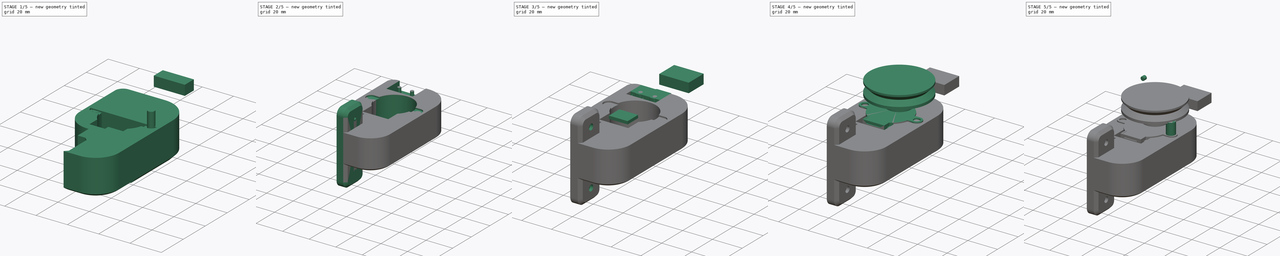
[diagram: build sequence overview — one tinted view per stage of 5, left to right]
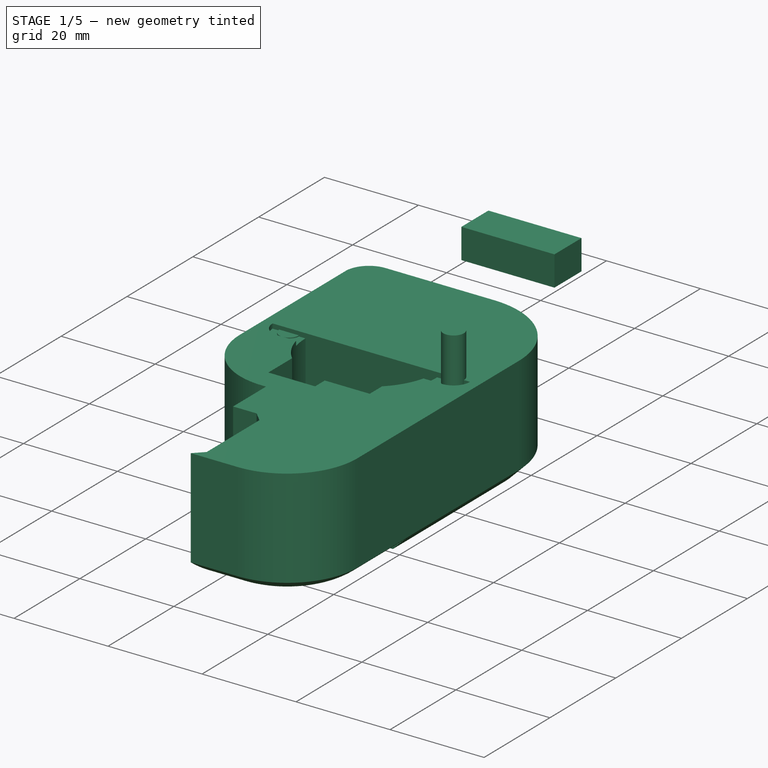
[diagram: stage 1 of 5 — iso view after this stage's code; geometry added in this stage tinted green]
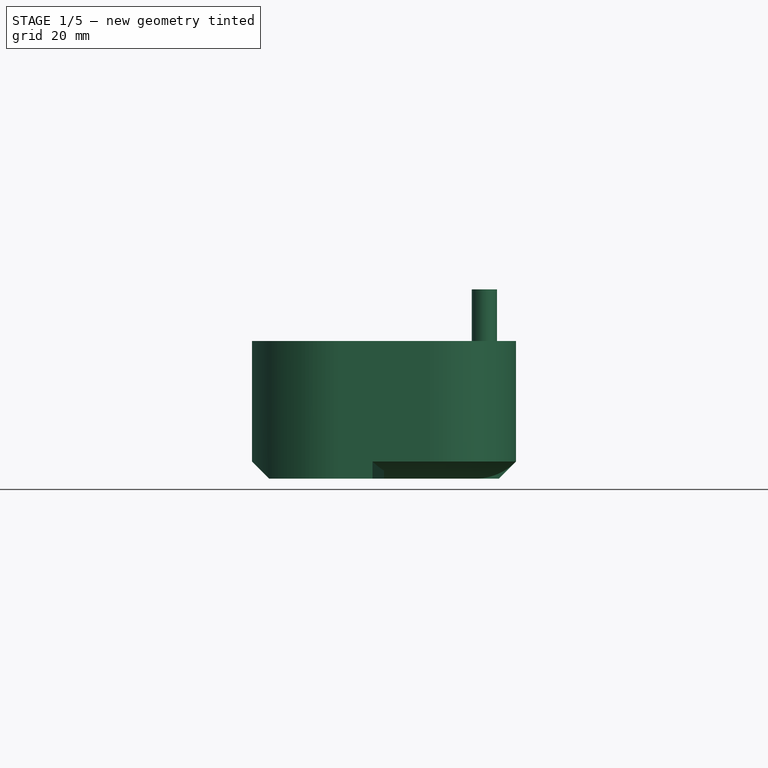
[diagram: stage 1 of 5 — front view after this stage's code; geometry added in this stage tinted green]
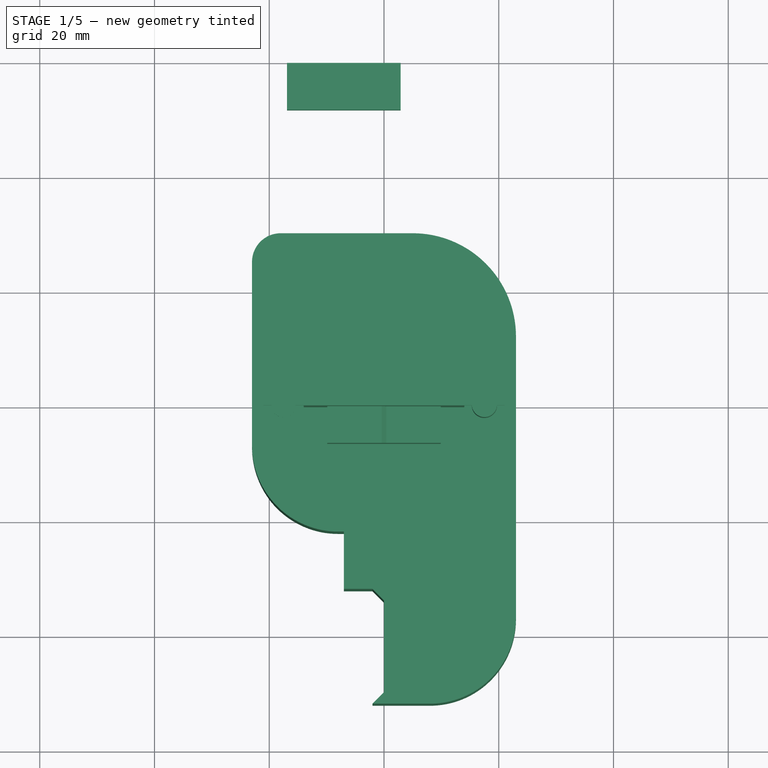
[diagram: stage 1 of 5 — top view after this stage's code; geometry added in this stage tinted green]
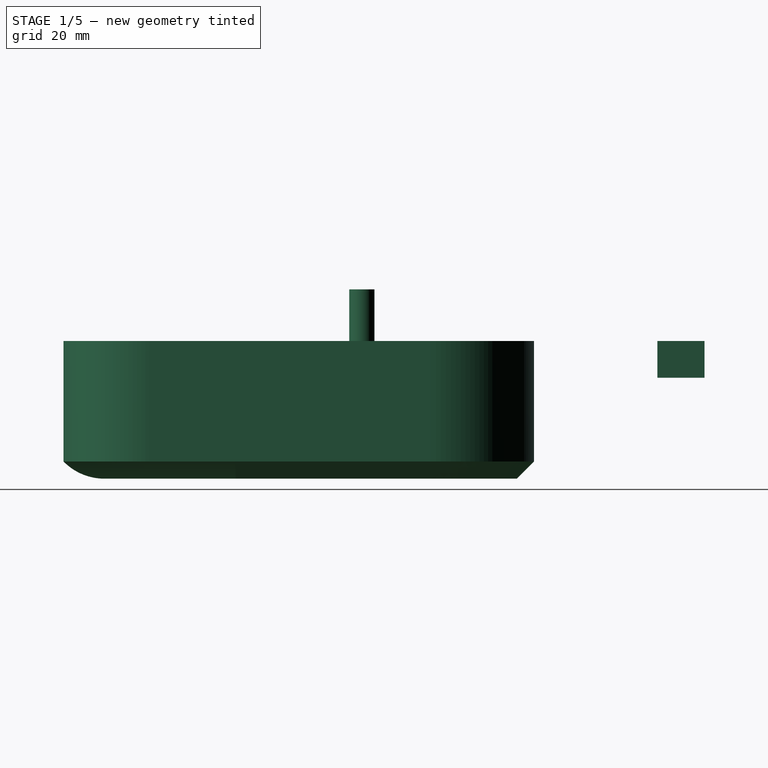
[diagram: stage 1 of 5 — right view after this stage's code; geometry added in this stage tinted green]
FCSTD DOCUMENT  (FreeCAD 0.17R13541 (Git))
Label: naped_rolety
License: All rights reserved
LicenseURL: http://en.wikipedia.org/wiki/All_rights_reserved
objects: Part::Cut×50, Part::Box×40, Part::Cylinder×37, Sketcher::SketchObject×23, Part::Chamfer×16, Part::MultiFuse×14, PartDesign::Pad×13, Part::Fuse×13, Part::Fillet×11, Part::Feature×7, Part::Mirroring×6, PartDesign::Body×6, App::DocumentObjectGroup×4, PartDesign::Pocket×3, PartDesign::Chamfer×3, Part::Compound×2, Part::FeaturePython×2, PartDesign::Revolution×1, Part::Plane×1, Part::Revolution×1
note: 266 computed .brp shape members not serialized (recipe doc carries the construction recipe); baked Part::Feature solids carry a one-line shape summary decoded from their .brp

FEATURE [Part::Feature] Compound001  label="28BYJ-48 final"
  shape: bbox 42 x 31 x 29 mm, 57 faces, 3 solids (baked)
FEATURE [Part::Box] Box007  label="Kostka"
  AttacherType = Attacher::AttachEngine3D
  Height = 24
  Length = 46
  Placement = pos=(-23,-22,-5.8) rot=(0,0,1;0rad)
  Width = 40
FEATURE [Part::Feature] Compound002  label="28BYJ-48 final001"
  Placement = pos=(0,0,-0.8) rot=(0,0,1;0rad)
  shape: bbox 42 x 31 x 29 mm, 57 faces, 3 solids (baked)
FEATURE [Part::Cut] Cut005
  Base = -> Box007
  Tool = -> Compound001
FEATURE [Part::Box] Box008  label="Kostka001"
  AttacherType = Attacher::AttachEngine3D
  Height = 19
  Length = 19.5
  Placement = pos=(-10,-17.2,0) rot=(0,0,1;0rad)
  Width = 9
FEATURE [Part::Cut] Cut006
  Base = -> Cut005
  Tool = -> Box008
FEATURE [Part::Fillet] Fillet
  Base = -> Cut006
  Edges = 1 edges r=15: [Edge23]
FEATURE [Part::Fillet] Fillet001
  Base = -> Fillet
  Edges = 1 edges r=15: [Edge20]
FEATURE [Part::Chamfer] Chamfer
  Base = -> Fillet001
  Edges = 5 edges r=3: [Edge19,Edge22,Edge24,Edge27,Edge29]
FEATURE [Part::Box] Box009  label="Kostka002"
  AttacherType = Attacher::AttachEngine3D
  Height = 24
  Length = 30
  Placement = pos=(-13,-52,-5.8) rot=(0,0,1;0rad)
  Width = 30
FEATURE [Part::Box] Box010  label="Kostka003"
  AttacherType = Attacher::AttachEngine3D
  Height = 54
  Length = 7
  Placement = pos=(-7,-52,-20.8) rot=(0,0,1;0rad)
  Width = 20
FEATURE [Part::Fillet] Fillet002
  Base = -> Box009
  Edges = 1 edges r=15: [Edge5]
  Placement = pos=(6,0,0) rot=(0,0,1;0rad)
FEATURE [Part::Chamfer] Chamfer001
  Base = -> Fillet002
  Edges = 3 edges r=3: [Edge4,Edge9,Edge13]
FEATURE [Part::Fillet] Fillet003
  Base = -> Chamfer
  Edges = 1 edges r=15: [Edge32]
FEATURE [Part::Fillet] Fillet004
  Base = -> Box010
  Edges = 4 edges r=5: [Edge9,Edge10,Edge11,Edge12]
FEATURE [Part::Chamfer] Chamfer002
  Base = -> Fillet004
  Edges = 1 edges r=2: [Edge17]
FEATURE [Part::Cylinder] Cylinder004  label="Cylinder"
  Angle = 360
  AttacherType = Attacher::AttachEngine3D
  Height = 10
  Placement = pos=(-8,-42,-12.3) rot=(0,1,0;1.5708rad)
  Radius = 2
FEATURE [Part::Cylinder] Cylinder005  label="Cylinder001"
  Angle = 360
  AttacherType = Attacher::AttachEngine3D
  Height = 10
  Placement = pos=(-8,-42,24.7) rot=(0,1,0;1.5708rad)
  Radius = 2
FEATURE [Part::Cut] Cut007
  Base = -> Chamfer002
  Tool = -> Cylinder004
FEATURE [Part::Cut] Cut008  label="wspornik_montaz"
  Base = -> Cut007
  Tool = -> Cylinder005
FEATURE [Part::Feature] Compound003  label="28BYJ-48 final002"
  shape: bbox 42 x 31 x 29 mm, 57 faces, 3 solids (baked)
FEATURE [Part::Cut] Cut009
  Base = -> Fillet003
  Tool = -> Compound002
FEATURE [Part::Cut] Cut010
  Base = -> Cut009
  Tool = -> Box008
FEATURE [Part::Cylinder] Cylinder006  label="Cylinder002"
  Angle = 360
  AttacherType = Attacher::AttachEngine3D
  Height = 10
  Placement = pos=(17.5,0,17.4) rot=(0,0,1;0rad)
  Radius = 2.1
FEATURE [Part::Cylinder] Cylinder008  label="Cylinder004"
  Angle = 360
  AttacherType = Attacher::AttachEngine3D
  Height = 10
  Placement = pos=(-17.5,0,17.4) rot=(0,0,1;0rad)
  Radius = 2.1
FEATURE [Part::Cut] Cut011
  Base = -> Cut010
  Tool = -> Cylinder006
FEATURE [Part::Cut] Cut012
  Base = -> Cut011
  Tool = -> Cylinder008
FEATURE [Part::Feature] Compound005  label="28BYJ-48 final003"
  Placement = pos=(0,0,-1) rot=(0,0,1;0rad)
  shape: bbox 42 x 31 x 29 mm, 57 faces, 3 solids (baked)
FEATURE [Part::Feature] Compound006  label="28BYJ-48 final004"
  Placement = pos=(0,0,-0.8) rot=(0,0,1;0rad)
  shape: bbox 42 x 31 x 29 mm, 57 faces, 3 solids (baked)
FEATURE [Part::Cut] Cut023
  Base = -> Cut012
  Tool = -> Compound005
FEATURE [Part::Box] Box019  label="Kostka005"
  AttacherType = Attacher::AttachEngine3D
  Height = 4
  Length = 0.5
  Placement = pos=(8.1,-4.7,-4) rot=(0,0,1;0rad)
  Width = 3
FEATURE [Part::Box] Box020  label="Kostka006"
  AttacherType = Attacher::AttachEngine3D
  Height = 4
  Length = 0.5
  Placement = pos=(-8,-4.7,-4) rot=(0,0,1;0rad)
  Width = 3
FEATURE [Part::Box] Box021  label="Kostka007"
  AttacherType = Attacher::AttachEngine3D
  Height = 4
  Length = 0.5
  Placement = pos=(0.8,-4.7,-4) rot=(0,0,1;0rad)
  Width = 3
FEATURE [Sketcher::SketchObject] Sketch022
  MapMode = 5
  Placement = pos=(0,0,0) rot=(1,0,0;1.5708rad)
  Support = -> [XZ_Plane]
FEATURE [Sketcher::SketchObject] Sketch023
  MapMode = 5
  Placement = pos=(0,0,0) rot=(1,0,0;1.5708rad)
  Support = -> [XZ_Plane]
  sketch-geometry (6):
    g0: LineSegment StartX=-9.9 StartY=0 StartZ=0 EndX=9.9 EndY=0 EndZ=0
    g1: LineSegment StartX=9.9 StartY=0 StartZ=0 EndX=9.9 EndY=9.5 EndZ=0
    g2: LineSegment StartX=9.9 StartY=9.5 StartZ=0 EndX=0.4 EndY=9.5 EndZ=0
    g3: LineSegment StartX=0.4 StartY=9.5 StartZ=0 EndX=-0.4 EndY=10.2 EndZ=0
    g4: LineSegment StartX=-0.4 StartY=10.2 StartZ=0 EndX=-9.9 EndY=10.2 EndZ=0
    g5: LineSegment StartX=-9.9 StartY=10.2 StartZ=0 EndX=-9.9 EndY=0 EndZ=0
  constraints (18):
    c: Horizontal(g0)
    c: Coincident(g1,g0)
    c: Vertical(g1)
    c: Coincident(g2,g1)
    c: Horizontal(g2)
    c: Coincident(g3,g2)
    c: Coincident(g4,g3)
    c: Coincident(g5,g4)
    c: Coincident(g5,g0)
    c: Vertical(g5)
    c: Equal(g2,g4)
    c: DistanceY(g5,g5) = 10.2
    c: DistanceY(g1,g1) = 9.5
    c: DistanceY(g0,g3) = 10.2
    c: DistanceX(g0,g0) = 19.8
    c: DistanceX(g4,g4) = 9.5
    c: DistanceY(g-1,g0) = 0
    c: Symmetric(g0,g0,g-2)
FEATURE [PartDesign::Pad] Pad014
  Length = 6.4
  Length2 = 100
  Placement = pos=(0,0,0) rot=(1,0,0;1.5708rad)
  Profile = -> Sketch023
  Type = 0
FEATURE [Part::Box] Box022  label="Kostka008"
  AttacherType = Attacher::AttachEngine3D
  Height = 0.4
  Length = 3.5
  Placement = pos=(-6.55,-6.4,-0.4) rot=(0,0,1;0rad)
  Width = 6.4
FEATURE [Part::MultiFuse] Fusion015
  Shapes = -> [Box020,Box021,Box019]
FEATURE [Part::Box] Box023  label="Kostka009"
  AttacherType = Attacher::AttachEngine3D
  Height = 24
  Length = 46
  Placement = pos=(-23,0,-5.8) rot=(0,0,1;0rad)
  Width = 30
FEATURE [Part::Fillet] Fillet005
  Base = -> Box023
  Edges = 1 edges r=18: [Edge7]
FEATURE [Part::Fillet] Fillet006
  Base = -> Fillet005
  Edges = 1 edges r=5: [Edge15]
FEATURE [Part::Chamfer] Chamfer012
  Base = -> Fillet006
  Edges = 2 edges r=3: [Edge15,Edge17]
FEATURE [Part::Box] Box030  label="Kostka016"
  AttacherType = Attacher::AttachEngine3D
  Height = 6.4
  Length = 19.8
  Placement = pos=(-16.9,51.5,11.8) rot=(0,0,1;0rad)
  Width = 8.2
FEATURE [Part::MultiFuse] Fusion022
  Shapes = -> [Chamfer012,Cut023]
FEATURE [Part::Fillet] Fillet008
  Base = -> Chamfer001
  Edges = 1 edges r=10: [Edge9]
FEATURE [Part::Cylinder] Cylinder022
  Angle = 360
  AttacherType = Attacher::AttachEngine3D
  Height = 10
  Placement = pos=(17.5,0,17.2) rot=(0,0,1;0rad)
  Radius = 2.2
FEATURE [Part::Box] Box037  label="Kostka023"
  AttacherType = Attacher::AttachEngine3D
  Height = 5
  Length = 19.5
  Placement = pos=(-10,-20,13.2) rot=(0,0,1;0rad)
  Width = 3
FEATURE [Part::Fillet] Fillet009
  Base = -> Box037
  Edges = 1 edges r=1: [Edge9]
FEATURE [Part::Cut] Cut040
  Base = -> Fillet008
  Tool = -> Cut008
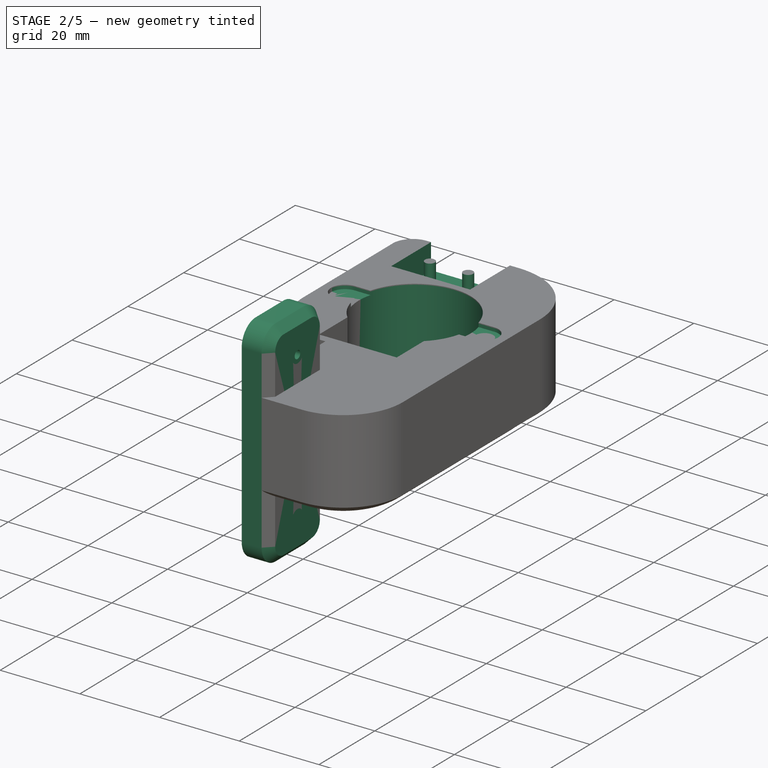
[diagram: stage 2 of 5 — iso view after this stage's code; geometry added in this stage tinted green]
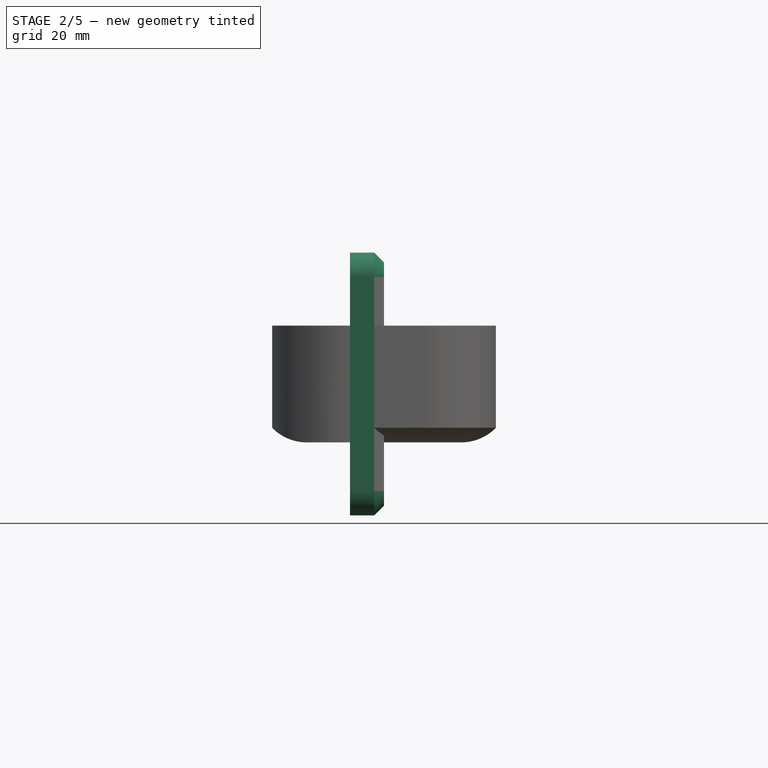
[diagram: stage 2 of 5 — front view after this stage's code; geometry added in this stage tinted green]
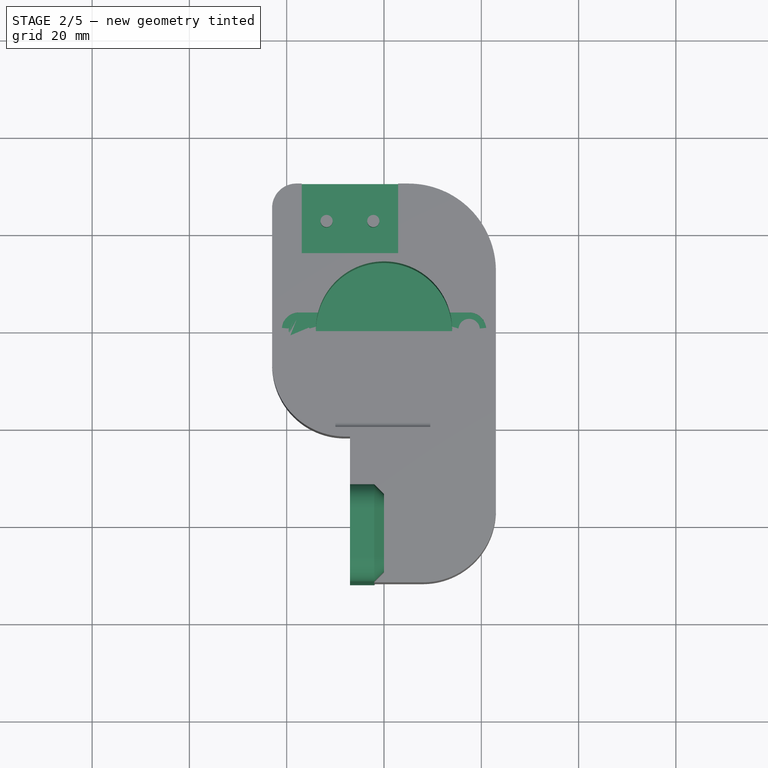
[diagram: stage 2 of 5 — top view after this stage's code; geometry added in this stage tinted green]
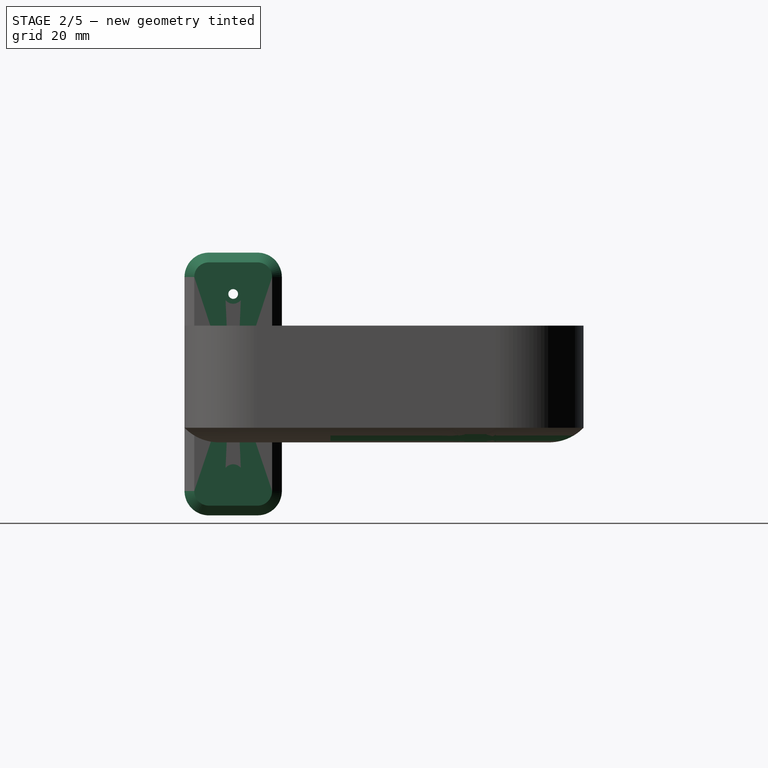
[diagram: stage 2 of 5 — right view after this stage's code; geometry added in this stage tinted green]
FEATURE [Part::Cylinder] Cylinder019
  Angle = 360
  AttacherType = Attacher::AttachEngine3D
  Height = 10
  Placement = pos=(-4.8,2,2.5) rot=(1,0,0;1.5708rad)
  Radius = 1.25
FEATURE [Part::Box] Box018  label="Kostka004"
  AttacherType = Attacher::AttachEngine3D
  Height = 0.4
  Length = 3.5
  Placement = pos=(3.05,-6.4,-0.4) rot=(0,0,1;0rad)
  Width = 6.4
FEATURE [Sketcher::SketchObject] Sketch021
  MapMode = 5
  Placement = pos=(0,0,0) rot=(1,0,0;1.5708rad)
  Support = -> [XZ_Plane]
FEATURE [Part::Chamfer] Chamfer011
  Base = -> Box018
  Edges = 2 edges r=0.39: [Edge4,Edge8]
FEATURE [Part::Chamfer] Chamfer010
  Base = -> Box022
  Edges = 1 edges r=0.39: [Edge4]
FEATURE [Part::Chamfer] Chamfer009
  Base = -> Chamfer010
  Edges = 1 edges r=0.39: [Edge15]
FEATURE [Part::Mirroring] Part__Mirroring  label="Cylinder001 (Mirror #1)"
  Base = (0,0,0)
  Normal = (1,0,0)
  Source = -> Cylinder019
FEATURE [Part::MultiFuse] Fusion014
  Shapes = -> [Chamfer011,Chamfer009]
FEATURE [PartDesign::Body] Body  label="Body003"
  Group = -> [Sketch023,Pad014,Sketch021,Sketch022]
  Origin = -> Origin
  Tip = -> Pad014
FEATURE [Part::Cut] Cut024
  Base = -> Body
  Tool = -> Cylinder019
FEATURE [Part::Cut] Cut025
  Base = -> Cut024
  Tool = -> Part__Mirroring
FEATURE [Sketcher::SketchObject] Sketch024
  MapMode = 5
  Placement = pos=(0,0,0) rot=(1,0,0;1.5708rad)
  Support = -> [XZ_Plane001]
  sketch-geometry (6):
    g0: LineSegment StartX=-7.1993 StartY=11.402 StartZ=0 EndX=9.8007 EndY=11.402 EndZ=0
    g1: LineSegment StartX=-7.1993 StartY=11.402 StartZ=0 EndX=-7.1993 EndY=10.202 EndZ=0
    g2: LineSegment StartX=-6.9993 StartY=10.202 StartZ=0 EndX=-6.9993 EndY=11.202 EndZ=0
    g3: LineSegment StartX=-6.9993 StartY=11.202 StartZ=0 EndX=9.8007 EndY=11.202 EndZ=0
    g4: LineSegment StartX=9.8007 StartY=11.402 StartZ=0 EndX=9.8007 EndY=11.202 EndZ=0
    g5: LineSegment StartX=-7.1993 StartY=10.202 StartZ=0 EndX=-6.9993 EndY=10.202 EndZ=0
  constraints (16):
    c: Horizontal(g0)
    c: DistanceX(g0,g0) = 17
    c: Coincident(g1,g0)
    c: Vertical(g1)
    c: Vertical(g2)
    c: Coincident(g3,g2)
    c: Horizontal(g3)
    c: Coincident(g4,g0)
    c: Coincident(g4,g3)
    c: DistanceX(g0,g2) = 0.2
    c: DistanceX(g3,g3) = 16.8
    c: DistanceY(g4,g4) = 0.2
    c: DistanceY(g1,g1) = 1.2
    c: DistanceY(g2,g2) = 1
    c: Coincident(g5,g1)
    c: Coincident(g5,g2)
FEATURE [PartDesign::Pad] Pad013
  Length = 3.8
  Length2 = 100
  Placement = pos=(0,0,0) rot=(1,0,0;1.5708rad)
  Profile = -> Sketch024
  Type = 0
FEATURE [PartDesign::Body] Body001  label="Body002"
  Group = -> [Sketch024,Pad013]
  Origin = -> Origin001
  Placement = pos=(0,-1.3,0) rot=(0,0,1;0rad)
  Tip = -> Pad013
FEATURE [Part::MultiFuse] Fusion013
  Placement = pos=(0,36,66) rot=(-1,0,0;1.5708rad)
  Shapes = -> [Body001,Cut025,Fusion015,Fusion014]
FEATURE [Part::Mirroring] Part__Mirroring001  label="Fusion013 (Mirror #2)"
  Base = (0,0,0)
  Normal = (1,0,0)
  Placement = pos=(-7,15.5,-54.2) rot=(0,0,1;0rad)
  Source = -> Fusion013
FEATURE [Part::Box] Box029  label="Kostka015"
  AttacherType = Attacher::AttachEngine3D
  Height = 6.4
  Length = 19.8
  Placement = pos=(-16.9,47.4,11.8) rot=(0,0,1;0rad)
  Width = 14.3
FEATURE [Part::Cut] Cut030
  Base = -> Box030
  Tool = -> Part__Mirroring001
FEATURE [Part::Cut] Cut031
  Base = -> Box029
  Placement = pos=(0,-31.7,0) rot=(0,0,1;0rad)
  Tool = -> Cut030
FEATURE [Part::Cut] Cut032
  Base = -> Fusion022
  Tool = -> Cut031
FEATURE [Part::Fillet] Fillet007
  Base = -> Cut032
  Edges = 1 edges r=10: [Edge10]
FEATURE [Part::Feature] Compound007  label="28BYJ-48 final005"
  Placement = pos=(0,0,-1) rot=(0,0,1;0rad)
  shape: bbox 42 x 31 x 29 mm, 57 faces, 3 solids (baked)
FEATURE [Part::Cut] Cut033
  Base = -> Fillet007
  Tool = -> Compound006
FEATURE [Part::Feature] Compound008  label="28BYJ-48 final006"
  Placement = pos=(0,0,-1) rot=(0,0,1;0rad)
  shape: bbox 42 x 31 x 29 mm, 57 faces, 3 solids (baked)
FEATURE [Part::Cut] Cut034
  Base = -> Cut033
  Tool = -> Compound007
FEATURE [Part::Cylinder] Cylinder023
  Angle = 360
  AttacherType = Attacher::AttachEngine3D
  Height = 10
  Placement = pos=(-17.5,0,17.2) rot=(0,0,1;0rad)
  Radius = 2.2
FEATURE [Part::Cut] Cut035
  Base = -> Cut034
  Tool = -> Cylinder022
FEATURE [Part::Cut] Cut036
  Base = -> Cut035
  Tool = -> Cylinder023
FEATURE [Part::Cut] Cut037
  Base = -> Cut036
  Tool = -> Fillet009
FEATURE [Part::Cylinder] Cylinder024
  Angle = 360
  AttacherType = Attacher::AttachEngine3D
  Height = 10
  Placement = pos=(-8,-42,24.7) rot=(0,1,0;1.5708rad)
  Radius = 2
FEATURE [Part::Box] Box038  label="Kostka024"
  AttacherType = Attacher::AttachEngine3D
  Height = 54
  Length = 7
  Placement = pos=(-7,-52,-20.8) rot=(0,0,1;0rad)
  Width = 20
FEATURE [Part::Fillet] Fillet010
  Base = -> Box038
  Edges = 4 edges r=5: [Edge9,Edge10,Edge11,Edge12]
FEATURE [Part::Chamfer] Chamfer019
  Base = -> Fillet010
  Edges = 1 edges r=2: [Edge17]
FEATURE [Part::Cylinder] Cylinder025
  Angle = 360
  AttacherType = Attacher::AttachEngine3D
  Height = 10
  Placement = pos=(-8,-42,-12.3) rot=(0,1,0;1.5708rad)
  Radius = 2
FEATURE [Part::Cut] Cut038
  Base = -> Chamfer019
  Tool = -> Cylinder025
FEATURE [Part::Cut] Cut039  label="wspornik_montaz001"
  Base = -> Cut038
  Tool = -> Cylinder024
FEATURE [Part::Cylinder] Cylinder026
  Angle = 360
  AttacherType = Attacher::AttachEngine3D
  Height = 10
  Placement = pos=(-7,-42,6) rot=(0,1,0;1.5708rad)
  Radius = 1
FEATURE [Part::Cylinder] Cylinder027
  Angle = 360
  AttacherType = Attacher::AttachEngine3D
  Height = 2
  Placement = pos=(-7,-42,6) rot=(0,1,0;1.5708rad)
  Radius = 2
FEATURE [Part::Cut] Cut041
  Base = -> Cut039
  Tool = -> Cylinder026
FEATURE [Part::Cut] Cut042
  Base = -> Cut041
  Tool = -> Cylinder027
FEATURE [Part::Cylinder] Cylinder028
  Angle = 360
  AttacherType = Attacher::AttachEngine3D
  Height = 7
  Placement = pos=(-7,-42,-12.3) rot=(0,1,0;1.5708rad)
  Radius = 2
FEATURE [Part::Cylinder] Cylinder029
  Angle = 360
  AttacherType = Attacher::AttachEngine3D
  Height = 7
  Placement = pos=(-7,-42,24.7) rot=(0,1,0;1.5708rad)
  Radius = 2
FEATURE [Part::Cylinder] Cylinder030
  Angle = 360
  AttacherType = Attacher::AttachEngine3D
  Height = 7
  Placement = pos=(-7,-42,-12.3) rot=(0,1,0;1.5708rad)
  Radius = 1
FEATURE [Part::Cylinder] Cylinder031
  Angle = 360
  AttacherType = Attacher::AttachEngine3D
  Height = 7
  Placement = pos=(-7,-42,24.7) rot=(0,1,0;1.5708rad)
  Radius = 1
FEATURE [Part::MultiFuse] Fusion023
  Shapes = -> [Cut042,Cylinder028]
FEATURE [Part::MultiFuse] Fusion024
  Shapes = -> [Fusion023,Cylinder029]
FEATURE [Part::Cut] Cut043
  Base = -> Fusion024
  Tool = -> Cylinder031
FEATURE [Part::MultiFuse] Fusion025  label="korpus"
  Shapes = -> [Cut037,Cut040]
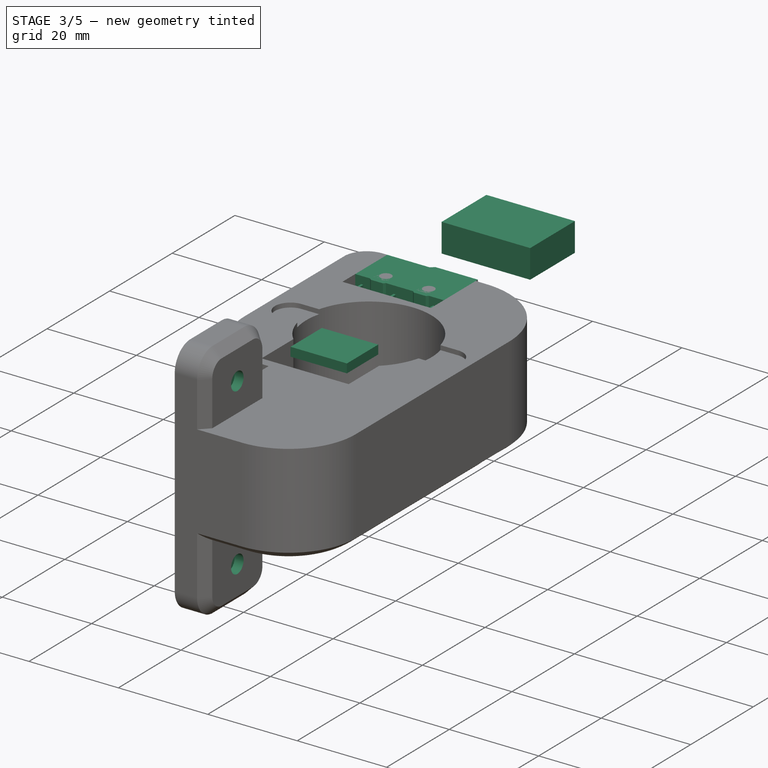
[diagram: stage 3 of 5 — iso view after this stage's code; geometry added in this stage tinted green]
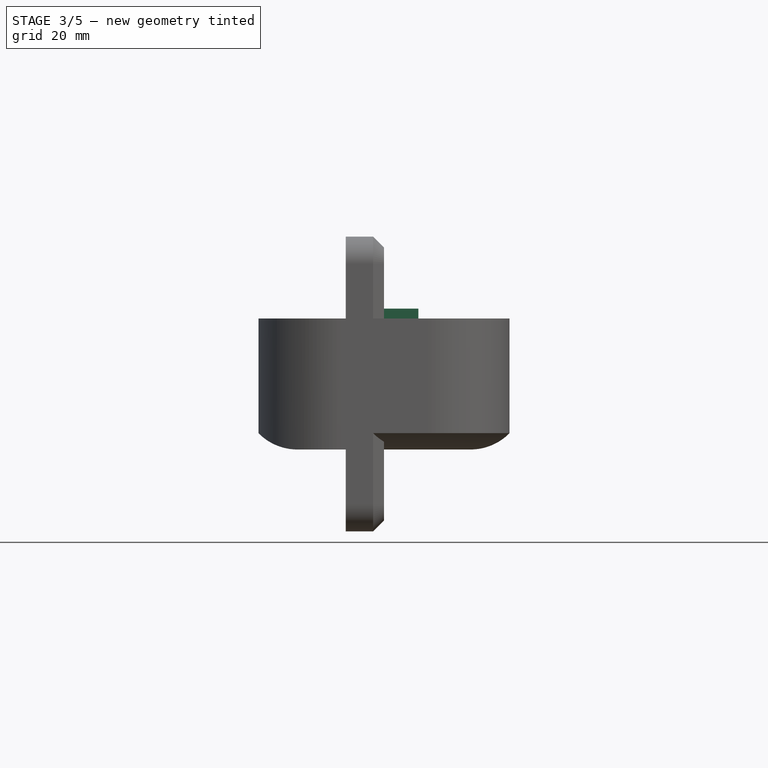
[diagram: stage 3 of 5 — front view after this stage's code; geometry added in this stage tinted green]
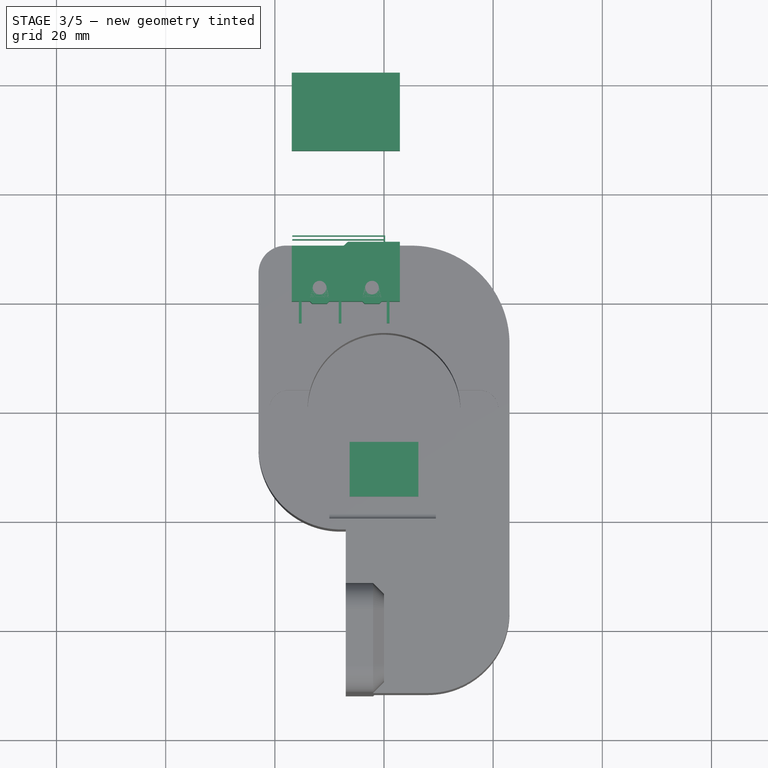
[diagram: stage 3 of 5 — top view after this stage's code; geometry added in this stage tinted green]
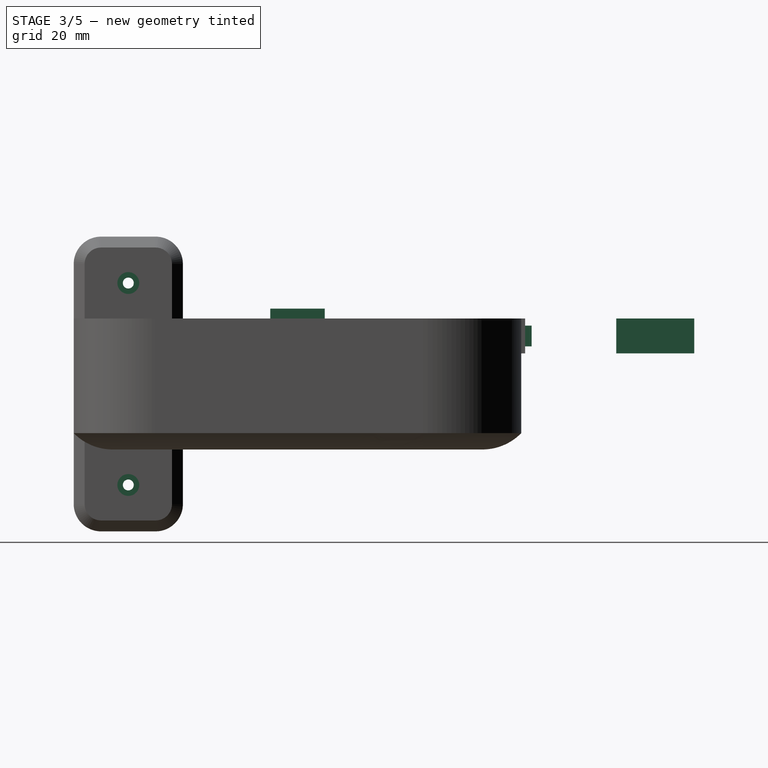
[diagram: stage 3 of 5 — right view after this stage's code; geometry added in this stage tinted green]
FEATURE [App::DocumentObjectGroup] Grupo002  label="Axis003"
  Group = -> [Cut018]
FEATURE [Part::Box] Box017  label="Cubo013"
  AttacherType = Attacher::AttachEngine3D
  Height = 2
  Length = 12.6
  Placement = pos=(-6.3,-16,18) rot=(0,0,1;0rad)
  Width = 10
FEATURE [Part::Box] Box024  label="Kostka010"
  AttacherType = Attacher::AttachEngine3D
  Height = 0.4
  Length = 3.5
  Placement = pos=(3.05,-6.4,-0.4) rot=(0,0,1;0rad)
  Width = 6.4
FEATURE [Part::Cylinder] Cylinder020
  Angle = 360
  AttacherType = Attacher::AttachEngine3D
  Height = 10
  Placement = pos=(-4.8,2,2.5) rot=(1,0,0;1.5708rad)
  Radius = 1.25
FEATURE [Part::Box] Box025  label="Kostka011"
  AttacherType = Attacher::AttachEngine3D
  Height = 4
  Length = 0.5
  Placement = pos=(8.1,-4.7,-4) rot=(0,0,1;0rad)
  Width = 3
FEATURE [Part::Box] Box026  label="Kostka012"
  AttacherType = Attacher::AttachEngine3D
  Height = 4
  Length = 0.5
  Placement = pos=(-8,-4.7,-4) rot=(0,0,1;0rad)
  Width = 3
FEATURE [Part::Box] Box027  label="Kostka013"
  AttacherType = Attacher::AttachEngine3D
  Height = 4
  Length = 0.5
  Placement = pos=(0.8,-4.7,-4) rot=(0,0,1;0rad)
  Width = 3
FEATURE [Part::Box] Box028  label="Kostka014"
  AttacherType = Attacher::AttachEngine3D
  Height = 0.4
  Length = 3.5
  Placement = pos=(-6.55,-6.4,-0.4) rot=(0,0,1;0rad)
  Width = 6.4
FEATURE [Part::Chamfer] Chamfer014
  Base = -> Box028
  Edges = 1 edges r=0.39: [Edge4]
FEATURE [Part::Chamfer] Chamfer013
  Base = -> Chamfer014
  Edges = 1 edges r=0.39: [Edge15]
FEATURE [Part::Chamfer] Chamfer015
  Base = -> Box024
  Edges = 2 edges r=0.39: [Edge4,Edge8]
FEATURE [Part::MultiFuse] Fusion016
  Shapes = -> [Box026,Box027,Box025]
FEATURE [Part::Mirroring] Part__Mirroring003  label="Cylinder001 (Mirror #1)001"
  Base = (0,0,0)
  Normal = (1,0,0)
  Source = -> Cylinder020
FEATURE [Part::MultiFuse] Fusion018
  Shapes = -> [Chamfer015,Chamfer013]
FEATURE [Sketcher::SketchObject] Sketch025
  MapMode = 5
  Placement = pos=(0,0,0) rot=(1,0,0;1.5708rad)
  Support = -> [XZ_Plane003]
  sketch-geometry (6):
    g0: LineSegment StartX=-7.1993 StartY=11.402 StartZ=0 EndX=9.8007 EndY=11.402 EndZ=0
    g1: LineSegment StartX=-7.1993 StartY=11.402 StartZ=0 EndX=-7.1993 EndY=10.202 EndZ=0
    g2: LineSegment StartX=-6.9993 StartY=10.202 StartZ=0 EndX=-6.9993 EndY=11.202 EndZ=0
    g3: LineSegment StartX=-6.9993 StartY=11.202 StartZ=0 EndX=9.8007 EndY=11.202 EndZ=0
    g4: LineSegment StartX=9.8007 StartY=11.402 StartZ=0 EndX=9.8007 EndY=11.202 EndZ=0
    g5: LineSegment StartX=-7.1993 StartY=10.202 StartZ=0 EndX=-6.9993 EndY=10.202 EndZ=0
  constraints (16):
    c: Horizontal(g0)
    c: DistanceX(g0,g0) = 17
    c: Coincident(g1,g0)
    c: Vertical(g1)
    c: Vertical(g2)
    c: Coincident(g3,g2)
    c: Horizontal(g3)
    c: Coincident(g4,g0)
    c: Coincident(g4,g3)
    c: DistanceX(g0,g2) = 0.2
    c: DistanceX(g3,g3) = 16.8
    c: DistanceY(g4,g4) = 0.2
    c: DistanceY(g1,g1) = 1.2
    c: DistanceY(g2,g2) = 1
    c: Coincident(g5,g1)
    c: Coincident(g5,g2)
FEATURE [PartDesign::Pad] Pad015
  Length = 3.8
  Length2 = 100
  Placement = pos=(0,0,0) rot=(1,0,0;1.5708rad)
  Profile = -> Sketch025
  Type = 0
FEATURE [PartDesign::Body] Body003  label="Body005"
  Group = -> [Sketch025,Pad015]
  Origin = -> Origin002
  Placement = pos=(0,-1.3,0) rot=(0,0,1;0rad)
  Tip = -> Pad015
FEATURE [Sketcher::SketchObject] Sketch026
  MapMode = 5
  Placement = pos=(0,0,0) rot=(1,0,0;1.5708rad)
  Support = -> [XZ_Plane002]
FEATURE [Sketcher::SketchObject] Sketch027
  MapMode = 5
  Placement = pos=(0,0,0) rot=(1,0,0;1.5708rad)
  Support = -> [XZ_Plane002]
FEATURE [Sketcher::SketchObject] Sketch028
  MapMode = 5
  Placement = pos=(0,0,0) rot=(1,0,0;1.5708rad)
  Support = -> [XZ_Plane002]
  sketch-geometry (6):
    g0: LineSegment StartX=-9.9 StartY=0 StartZ=0 EndX=9.9 EndY=0 EndZ=0
    g1: LineSegment StartX=9.9 StartY=0 StartZ=0 EndX=9.9 EndY=9.5 EndZ=0
    g2: LineSegment StartX=9.9 StartY=9.5 StartZ=0 EndX=0.4 EndY=9.5 EndZ=0
    g3: LineSegment StartX=0.4 StartY=9.5 StartZ=0 EndX=-0.4 EndY=10.2 EndZ=0
    g4: LineSegment StartX=-0.4 StartY=10.2 StartZ=0 EndX=-9.9 EndY=10.2 EndZ=0
    g5: LineSegment StartX=-9.9 StartY=10.2 StartZ=0 EndX=-9.9 EndY=0 EndZ=0
  constraints (18):
    c: Horizontal(g0)
    c: Coincident(g1,g0)
    c: Vertical(g1)
    c: Coincident(g2,g1)
    c: Horizontal(g2)
    c: Coincident(g3,g2)
    c: Coincident(g4,g3)
    c: Coincident(g5,g4)
    c: Coincident(g5,g0)
    c: Vertical(g5)
    c: Equal(g2,g4)
    c: DistanceY(g5,g5) = 10.2
    c: DistanceY(g1,g1) = 9.5
    c: DistanceY(g0,g3) = 10.2
    c: DistanceX(g0,g0) = 19.8
    c: DistanceX(g4,g4) = 9.5
    c: DistanceY(g-1,g0) = 0
    c: Symmetric(g0,g0,g-2)
FEATURE [PartDesign::Pad] Pad016
  Length = 6.4
  Length2 = 100
  Placement = pos=(0,0,0) rot=(1,0,0;1.5708rad)
  Profile = -> Sketch028
  Type = 0
FEATURE [PartDesign::Body] Body002  label="Body004"
  Group = -> [Sketch028,Pad016,Sketch026,Sketch027]
  Origin = -> Origin003
  Tip = -> Pad016
FEATURE [Part::Cut] Cut026
  Base = -> Body002
  Tool = -> Cylinder020
FEATURE [Part::Cut] Cut027
  Base = -> Cut026
  Tool = -> Part__Mirroring003
FEATURE [Part::MultiFuse] Fusion017
  Placement = pos=(0,36,66) rot=(-1,0,0;1.5708rad)
  Shapes = -> [Body003,Cut027,Fusion016,Fusion018]
FEATURE [Part::Mirroring] Part__Mirroring002  label="Fusion013 (Mirror #2)001"
  Base = (0,0,0)
  Normal = (1,0,0)
  Placement = pos=(-7,-15.5,-54.2) rot=(0,0,1;0rad)
  Source = -> Fusion017
FEATURE [Part::Box] Box031  label="Kostka017"
  AttacherType = Attacher::AttachEngine3D
  Height = 0.4
  Length = 3.5
  Placement = pos=(3.05,-6.4,-0.4) rot=(0,0,1;0rad)
  Width = 6.4
FEATURE [Part::Cylinder] Cylinder021
  Angle = 360
  AttacherType = Attacher::AttachEngine3D
  Height = 10
  Placement = pos=(-4.8,2,2.5) rot=(1,0,0;1.5708rad)
  Radius = 1.25
FEATURE [Part::Box] Box032  label="Kostka018"
  AttacherType = Attacher::AttachEngine3D
  Height = 4
  Length = 0.5
  Placement = pos=(8.1,-4.7,-4) rot=(0,0,1;0rad)
  Width = 3
FEATURE [Part::Box] Box033  label="Kostka019"
  AttacherType = Attacher::AttachEngine3D
  Height = 4
  Length = 0.5
  Placement = pos=(-8,-4.7,-4) rot=(0,0,1;0rad)
  Width = 3
FEATURE [Part::Box] Box034  label="Kostka020"
  AttacherType = Attacher::AttachEngine3D
  Height = 4
  Length = 0.5
  Placement = pos=(0.8,-4.7,-4) rot=(0,0,1;0rad)
  Width = 3
FEATURE [Part::Box] Box035  label="Kostka021"
  AttacherType = Attacher::AttachEngine3D
  Height = 0.4
  Length = 3.5
  Placement = pos=(-6.55,-6.4,-0.4) rot=(0,0,1;0rad)
  Width = 6.4
FEATURE [Part::Chamfer] Chamfer017
  Base = -> Box035
  Edges = 1 edges r=0.39: [Edge4]
FEATURE [Part::Chamfer] Chamfer016
  Base = -> Chamfer017
  Edges = 1 edges r=0.39: [Edge15]
FEATURE [Part::Chamfer] Chamfer018
  Base = -> Box031
  Edges = 2 edges r=0.39: [Edge4,Edge8]
FEATURE [Part::MultiFuse] Fusion019
  Shapes = -> [Box033,Box034,Box032]
FEATURE [Part::Mirroring] Part__Mirroring005  label="Cylinder001 (Mirror #1)002"
  Base = (0,0,0)
  Normal = (1,0,0)
  Source = -> Cylinder021
FEATURE [Part::MultiFuse] Fusion021
  Shapes = -> [Chamfer018,Chamfer016]
FEATURE [Sketcher::SketchObject] Sketch029
  MapMode = 5
  Placement = pos=(0,0,0) rot=(1,0,0;1.5708rad)
  Support = -> [XZ_Plane005]
  sketch-geometry (6):
    g0: LineSegment StartX=-7.1993 StartY=11.402 StartZ=0 EndX=9.8007 EndY=11.402 EndZ=0
    g1: LineSegment StartX=-7.1993 StartY=11.402 StartZ=0 EndX=-7.1993 EndY=10.202 EndZ=0
    g2: LineSegment StartX=-6.9993 StartY=10.202 StartZ=0 EndX=-6.9993 EndY=11.202 EndZ=0
    g3: LineSegment StartX=-6.9993 StartY=11.202 StartZ=0 EndX=9.8007 EndY=11.202 EndZ=0
    g4: LineSegment StartX=9.8007 StartY=11.402 StartZ=0 EndX=9.8007 EndY=11.202 EndZ=0
    g5: LineSegment StartX=-7.1993 StartY=10.202 StartZ=0 EndX=-6.9993 EndY=10.202 EndZ=0
  constraints (16):
    c: Horizontal(g0)
    c: DistanceX(g0,g0) = 17
    c: Coincident(g1,g0)
    c: Vertical(g1)
    c: Vertical(g2)
    c: Coincident(g3,g2)
    c: Horizontal(g3)
    c: Coincident(g4,g0)
    c: Coincident(g4,g3)
    c: DistanceX(g0,g2) = 0.2
    c: DistanceX(g3,g3) = 16.8
    c: DistanceY(g4,g4) = 0.2
    c: DistanceY(g1,g1) = 1.2
    c: DistanceY(g2,g2) = 1
    c: Coincident(g5,g1)
    c: Coincident(g5,g2)
FEATURE [PartDesign::Pad] Pad017
  Length = 3.8
  Length2 = 100
  Placement = pos=(0,0,0) rot=(1,0,0;1.5708rad)
  Profile = -> Sketch029
  Type = 0
FEATURE [PartDesign::Body] Body005  label="Body007"
  Group = -> [Sketch029,Pad017]
  Origin = -> Origin004
  Placement = pos=(0,-1.3,0) rot=(0,0,1;0rad)
  Tip = -> Pad017
FEATURE [Sketcher::SketchObject] Sketch030
  MapMode = 5
  Placement = pos=(0,0,0) rot=(1,0,0;1.5708rad)
  Support = -> [XZ_Plane004]
FEATURE [Sketcher::SketchObject] Sketch031
  MapMode = 5
  Placement = pos=(0,0,0) rot=(1,0,0;1.5708rad)
  Support = -> [XZ_Plane004]
FEATURE [Sketcher::SketchObject] Sketch032
  MapMode = 5
  Placement = pos=(0,0,0) rot=(1,0,0;1.5708rad)
  Support = -> [XZ_Plane004]
  sketch-geometry (6):
    g0: LineSegment StartX=-9.9 StartY=0 StartZ=0 EndX=9.9 EndY=0 EndZ=0
    g1: LineSegment StartX=9.9 StartY=0 StartZ=0 EndX=9.9 EndY=9.5 EndZ=0
    g2: LineSegment StartX=9.9 StartY=9.5 StartZ=0 EndX=0.4 EndY=9.5 EndZ=0
    g3: LineSegment StartX=0.4 StartY=9.5 StartZ=0 EndX=-0.4 EndY=10.2 EndZ=0
    g4: LineSegment StartX=-0.4 StartY=10.2 StartZ=0 EndX=-9.9 EndY=10.2 EndZ=0
    g5: LineSegment StartX=-9.9 StartY=10.2 StartZ=0 EndX=-9.9 EndY=0 EndZ=0
  constraints (18):
    c: Horizontal(g0)
    c: Coincident(g1,g0)
    c: Vertical(g1)
    c: Coincident(g2,g1)
    c: Horizontal(g2)
    c: Coincident(g3,g2)
    c: Coincident(g4,g3)
    c: Coincident(g5,g4)
    c: Coincident(g5,g0)
    c: Vertical(g5)
    c: Equal(g2,g4)
    c: DistanceY(g5,g5) = 10.2
    c: DistanceY(g1,g1) = 9.5
    c: DistanceY(g0,g3) = 10.2
    c: DistanceX(g0,g0) = 19.8
    c: DistanceX(g4,g4) = 9.5
    c: DistanceY(g-1,g0) = 0
    c: Symmetric(g0,g0,g-2)
FEATURE [PartDesign::Pad] Pad018
  Length = 6.4
  Length2 = 100
  Placement = pos=(0,0,0) rot=(1,0,0;1.5708rad)
  Profile = -> Sketch032
  Type = 0
FEATURE [PartDesign::Body] Body004  label="Body006"
  Group = -> [Sketch032,Pad018,Sketch030,Sketch031]
  Origin = -> Origin005
  Tip = -> Pad018
FEATURE [Part::Cut] Cut028
  Base = -> Body004
  Tool = -> Cylinder021
FEATURE [Part::Cut] Cut029
  Base = -> Cut028
  Tool = -> Part__Mirroring005
FEATURE [Part::MultiFuse] Fusion020
  Placement = pos=(0,36,66) rot=(-1,0,0;1.5708rad)
  Shapes = -> [Body005,Cut029,Fusion019,Fusion021]
FEATURE [Part::Mirroring] Part__Mirroring004  label="krancowka"
  Base = (0,0,0)
  Normal = (1,0,0)
  Placement = pos=(-7,-16.2,-54.2) rot=(0,0,1;0rad)
  Source = -> Fusion020
FEATURE [Part::Box] Box036  label="Kostka022"
  AttacherType = Attacher::AttachEngine3D
  Height = 6.4
  Length = 19.8
  Placement = pos=(-16.9,47.4,11.8) rot=(0,0,1;0rad)
  Width = 14.3
FEATURE [Part::Cylinder] Cylinder032
  Angle = 360
  AttacherType = Attacher::AttachEngine3D
  Height = 2
  Placement = pos=(-2,-42,-12.3) rot=(0,1,0;1.5708rad)
  Radius = 2
FEATURE [Part::Cylinder] Cylinder033
  Angle = 360
  AttacherType = Attacher::AttachEngine3D
  Height = 2
  Placement = pos=(-2,-42,24.7) rot=(0,1,0;1.5708rad)
  Radius = 2
FEATURE [Part::Cut] Cut044
  Base = -> Cut043
  Tool = -> Cylinder030
FEATURE [Part::Cut] Cut045
  Base = -> Cut044
  Tool = -> Cylinder033
FEATURE [Part::Cut] Cut046  label="wspornik_montazowy_2"
  Base = -> Cut045
  Tool = -> Cylinder032
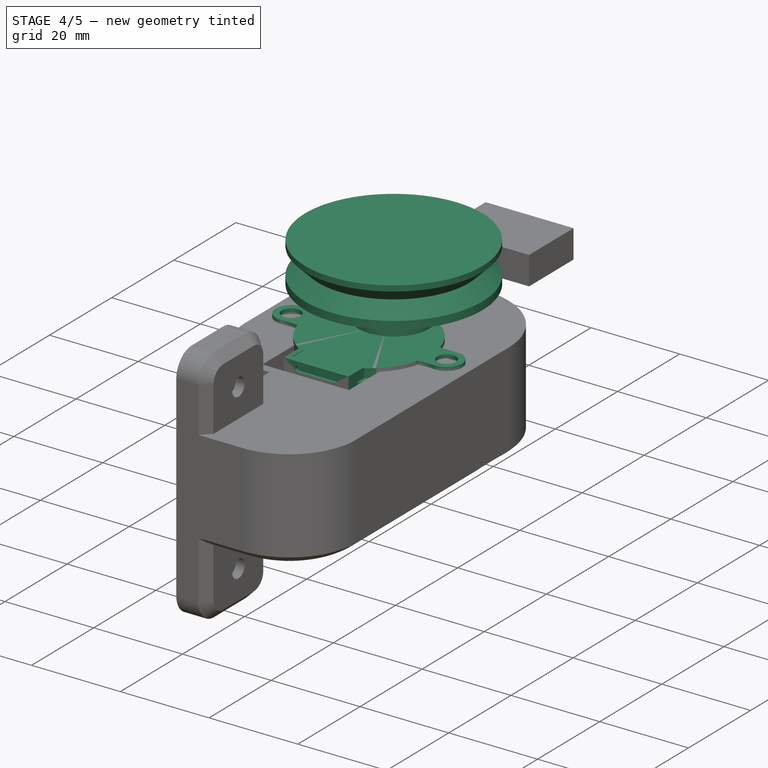
[diagram: stage 4 of 5 — iso view after this stage's code; geometry added in this stage tinted green]
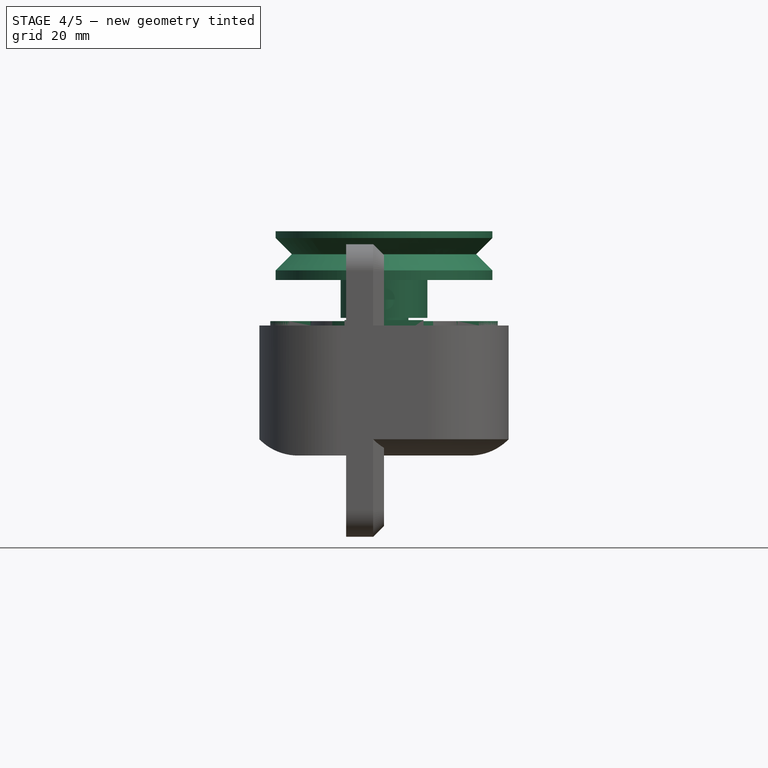
[diagram: stage 4 of 5 — front view after this stage's code; geometry added in this stage tinted green]
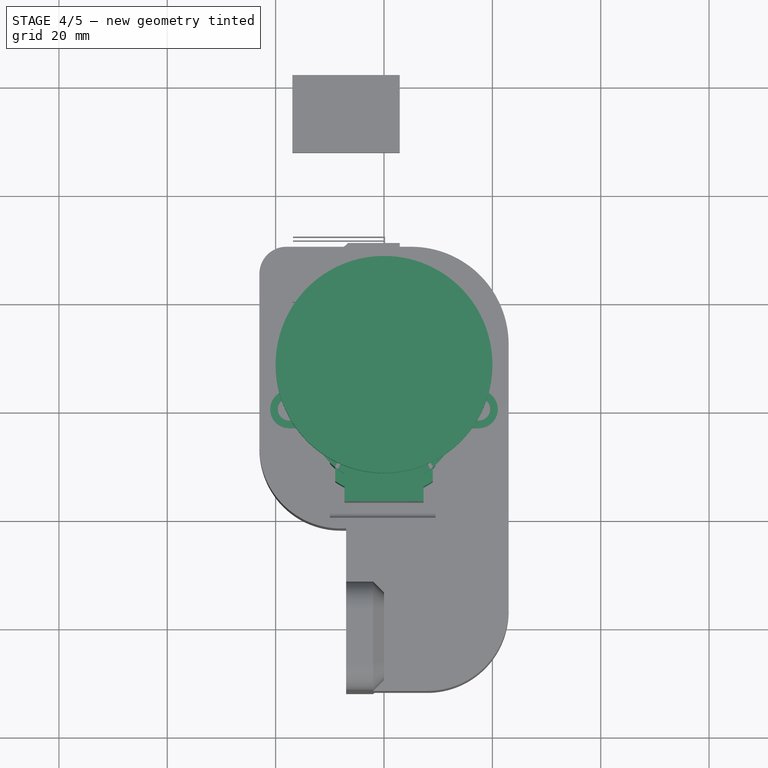
[diagram: stage 4 of 5 — top view after this stage's code; geometry added in this stage tinted green]
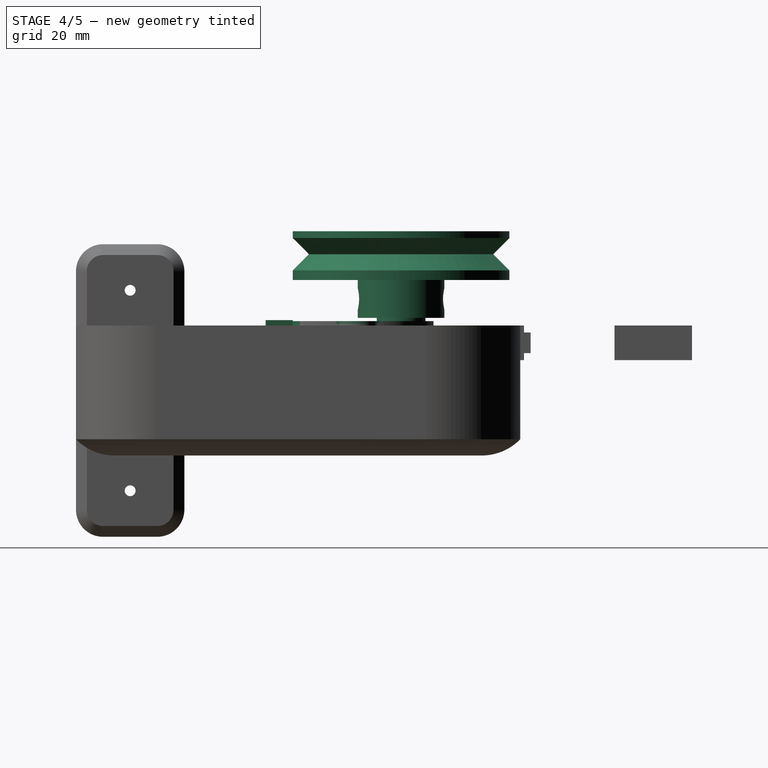
[diagram: stage 4 of 5 — right view after this stage's code; geometry added in this stage tinted green]
FEATURE [Part::Cylinder] Cylinder009  label="Cilindro002"
  Angle = 360
  AttacherType = Attacher::AttachEngine3D
  Height = 7.6
  Placement = pos=(6.1,0,0) rot=(0,0,1;0rad)
  Radius = 0.6
FEATURE [Part::FeaturePython] Array  # Draft array (typed FeaturePython)
  Angle = 360
  ArrayType = 1
  Axis = (0,0,1)
  Base = -> Cylinder009
  Center = (0,0,0)
  IntervalX = (1,0,0)
  IntervalY = (0,1,0)
  IntervalZ = (0,0,1)
  NumberPolar = 20
  NumberX = 2
  NumberY = 2
  NumberZ = 1
FEATURE [Part::Cylinder] Cylinder010  label="Cilindro003"
  Angle = 360
  AttacherType = Attacher::AttachEngine3D
  Height = 7.6
  Radius = 6.1
FEATURE [Part::Cylinder] Cylinder011  label="Cilindro004"
  Angle = 360
  AttacherType = Attacher::AttachEngine3D
  Height = 1
  Radius = 9
FEATURE [Part::Cylinder] Cylinder012  label="Cilindro005"
  Angle = 360
  AttacherType = Attacher::AttachEngine3D
  Height = 6
  Placement = pos=(0,0,8.6) rot=(0,0,1;0rad)
  Radius = 9
FEATURE [Part::Chamfer] Chamfer007
  Base = -> Cylinder011
  Edges = 1 edges r=0.5: [Edge1]
FEATURE [Part::Chamfer] Chamfer008
  Base = -> Cylinder012
  Edges = 1 edges r=0.5: [Edge3]
FEATURE [Part::Cylinder] Cylinder014  label="Cilindro007"
  Angle = 360
  AttacherType = Attacher::AttachEngine3D
  Height = 9
  Placement = pos=(1,0,12) rot=(0,1,0;1.5708rad)
  Radius = 1.5
FEATURE [Part::Plane] square
  AttacherType = Attacher::AttachEngine3D
  Length = 6
  Placement = pos=(21.25,0,0) rot=(0,0,1;0.785398rad)
  Width = 6
FEATURE [Part::FeaturePython] RefineRotateExtrude  # WARN: FeaturePython — macro-defined, semantics opaque (R4)
  Base = -> square
FEATURE [Part::Revolution] RotateExtrude
  Angle = 360
  Axis = (0,1,0)
  Base = (0,0,0)
  FaceMakerClass = Part::FaceMakerBullseye
  Placement = pos=(0,0,0) rot=(1,0,0;1.5708rad)
  Solid = false
  Source = -> RefineRotateExtrude
  Symmetric = false
FEATURE [Part::Cylinder] cylinder
  Angle = 360
  AttacherType = Attacher::AttachEngine3D
  Height = 16
  Radius = 8
FEATURE [Part::Box] cube
  AttacherType = Attacher::AttachEngine3D
  Height = 16
  Length = 3
  Placement = pos=(-1.5,-2.5,0) rot=(0,0,1;0rad)
  Width = 5
FEATURE [Part::Cut] difference
  Base = -> cylinder
  Tool = -> cube
FEATURE [Part::Cylinder] cylinder001
  Angle = 360
  AttacherType = Attacher::AttachEngine3D
  Height = 9
  Radius = 20
FEATURE [Part::Fuse] Group
  Base = -> difference
  Tool = -> cylinder001
FEATURE [Part::Cut] difference001
  Base = -> Group
  Tool = -> RotateExtrude
FEATURE [Part::Cylinder] cylinder002
  Angle = 360
  AttacherType = Attacher::AttachEngine3D
  Height = 30
  Placement = pos=(-15,0,12.5) rot=(0,1,0;1.5708rad)
  Radius = 2
FEATURE [Part::Cut] difference002  label="krazek"
  Base = -> difference001
  Placement = pos=(0,8,35.6) rot=(0.707107,0.707107,0;3.14159rad)
  Tool = -> cylinder002
FEATURE [Part::Cylinder] Cylinder015  label="Principal_body001"
  Angle = 360
  AttacherType = Attacher::AttachEngine3D
  Height = 19
  Radius = 14
FEATURE [Sketcher::SketchObject] Sketch018
  MapMode = 5
  Placement = pos=(0,0,18.2) rot=(0,0,1;0rad)
  sketch-geometry (6):
    g0: ArcOfCircle CenterX=-17.5 CenterY=0 CenterZ=0 NormalX=0 NormalY=0 NormalZ=1 AngleXU=0 Radius=3.5 StartAngle=1.5708 EndAngle=4.71239
    g1: ArcOfCircle CenterX=17.5 CenterY=0 CenterZ=0 NormalX=0 NormalY=0 NormalZ=1 AngleXU=0 Radius=3.5 StartAngle=4.71239 EndAngle=7.85398
    g2: LineSegment StartX=-17.5 StartY=-3.5 StartZ=0 EndX=17.5 EndY=-3.5 EndZ=0
    g3: LineSegment StartX=-17.5 StartY=3.5 StartZ=0 EndX=17.5 EndY=3.5 EndZ=0
    g4: Circle CenterX=-17.5 CenterY=0 CenterZ=0 NormalX=0 NormalY=0 NormalZ=1 AngleXU=0 Radius=2.1
    g5: Circle CenterX=17.5 CenterY=0 CenterZ=0 NormalX=0 NormalY=0 NormalZ=1 AngleXU=0 Radius=2.1
  constraints (14):
    c: Tangent(g0,g3) = 1.5708
    c: Tangent(g0,g2) = -1.5708
    c: Tangent(g2,g1) = -1.5708
    c: Tangent(g3,g1) = 1.5708
    c: Horizontal(g2)
    c: Equal(g0,g1)
    c: Symmetric(g0,g1,g-2)
    c: PointOnObject(g0,g-1)
    c: Coincident(g4,g0)
    c: Coincident(g5,g1)
    c: Radius(g4) = 2.1
    c: Radius(g0) = 3.5
    c: Equal(g4,g5)
    c: DistanceX(g0,g1) = 35
FEATURE [PartDesign::Pad] Pad011
  Length = 0.8
  Length2 = 100
  Placement = pos=(0,0,18.2) rot=(0,0,1;0rad)
  Profile = -> Sketch018
  Type = 0
FEATURE [Part::Fuse] Fusion007
  Base = -> Cylinder015
  Tool = -> Pad011
FEATURE [Part::Cylinder] Cylinder016  label="Cilindro008"
  Angle = 360
  AttacherType = Attacher::AttachEngine3D
  Height = 1.5
  Placement = pos=(0,8,19) rot=(0,0,1;0rad)
  Radius = 4.5
FEATURE [Part::Cylinder] Cylinder017  label="Axis002"
  Angle = 360
  AttacherType = Attacher::AttachEngine3D
  Height = 10
  Radius = 2.5
FEATURE [Part::Box] Box011  label="Cubo007"
  AttacherType = Attacher::AttachEngine3D
  Height = 6
  Length = 1
  Placement = pos=(2.5,1.5,4) rot=(0,0,1;1.5708rad)
  Width = 5
FEATURE [Part::Box] Box012  label="Cubo008"
  AttacherType = Attacher::AttachEngine3D
  Height = 6
  Length = 1
  Placement = pos=(2.5,-2.5,4) rot=(0,0,1;1.5708rad)
  Width = 5
FEATURE [Part::Fuse] Fusion008
  Base = -> Box011
  Tool = -> Box012
FEATURE [Part::Cut] Cut018  label="Axis final001"
  Base = -> Cylinder017
  Placement = pos=(0,8,19) rot=(0,0,1;0rad)
  Tool = -> Fusion008
FEATURE [Part::Fuse] Fusion009  label="Cilindric_Body001"
  Base = -> Fusion007
  Tool = -> Cylinder016
FEATURE [Part::Box] Box013  label="Cubo009"
  AttacherType = Attacher::AttachEngine3D
  Height = 1
  Length = 12.6
  Placement = pos=(-6.3,-16,18) rot=(0,0,1;0rad)
  Width = 10
FEATURE [Part::Fuse] Fusion010  label="Body001"
  Base = -> Fusion009
  Tool = -> Box013
FEATURE [Part::Box] Box014  label="Cubo010"
  AttacherType = Attacher::AttachEngine3D
  Height = 16.2
  Length = 14.6
  Placement = pos=(-7.3,-17,3) rot=(0,0,1;0rad)
  Width = 5
FEATURE [Part::Cut] Cut019  label="Plastic_base001"
  Base = -> Box014
  Tool = -> Fusion010
FEATURE [Part::Cylinder] Cylinder018  label="Cilindro009"
  Angle = 80
  AttacherType = Attacher::AttachEngine3D
  Height = 14
  Placement = pos=(0,0,3) rot=(0,0,1;4.01426rad)
  Radius = 16
FEATURE [Part::Cut] Cut020
  Base = -> Cylinder018
  Tool = -> Fusion010
FEATURE [Part::Box] Box015  label="Cubo011"
  AttacherType = Attacher::AttachEngine3D
  Height = 20
  Length = 3
  Placement = pos=(9,-15,0) rot=(0,0,1;0rad)
  Width = 6
FEATURE [Part::Box] Box016  label="Cubo012"
  AttacherType = Attacher::AttachEngine3D
  Height = 20
  Length = 3
  Placement = pos=(-12,-15,0) rot=(0,0,1;0rad)
  Width = 6
FEATURE [Part::Fuse] Fusion011  label="Arco_plastico001"
  Base = -> Box015
  Tool = -> Box016
FEATURE [Part::Cut] Cut021
  Base = -> Cut020
  Tool = -> Fusion011
FEATURE [Part::Fuse] Fusion012  label="Plastic_base_complete001"
  Base = -> Cut019
  Tool = -> Cut021
FEATURE [Part::Cut] Cut022  label="Plastic_base sin vaciado001"
  Base = -> Fusion012
  Tool = -> Box017
FEATURE [Sketcher::SketchObject] Sketch019
  ExternalGeometry = -> [Cut022]
  MapMode = 5
  Placement = pos=(0,-17,0) rot=(1,0,0;1.5708rad)
  Support = -> [Cut022]
  sketch-geometry (4):
    g0: ArcOfCircle CenterX=-4 CenterY=17.7 CenterZ=0 NormalX=0 NormalY=0 NormalZ=1 AngleXU=0 Radius=0.6 StartAngle=1.5708 EndAngle=4.71239
    g1: ArcOfCircle CenterX=4 CenterY=17.7 CenterZ=0 NormalX=0 NormalY=0 NormalZ=1 AngleXU=0 Radius=0.6 StartAngle=4.71239 EndAngle=7.85398
    g2: LineSegment StartX=-4 StartY=17.1 StartZ=0 EndX=4 EndY=17.1 EndZ=0
    g3: LineSegment StartX=-4 StartY=18.3 StartZ=0 EndX=4 EndY=18.3 EndZ=0
  constraints (10):
    c: Tangent(g0,g3) = 1.5708
    c: Tangent(g0,g2) = -1.5708
    c: Tangent(g2,g1) = -1.5708
    c: Tangent(g3,g1) = 1.5708
    c: Horizontal(g2)
    c: Equal(g0,g1)
    c: Symmetric(g0,g1,g-2)
    c: DistanceY(g1,g1) = -1.2
    c: DistanceX(g0,g1) = 8
    c: DistanceY(g-3,g0) = -1.5
FEATURE [PartDesign::Pocket] Pocket002  label="Plastic_base_vaciado001"
  Length = 0.6
  Length2 = 100
  Profile = -> Sketch019
  Type = 0
FEATURE [Sketcher::SketchObject] Sketch020
  ExternalGeometry = -> [Pocket002]
  MapMode = 5
  Placement = pos=(0,0,3) rot=(1,0,0;3.14159rad)
  Support = -> [Pocket002]
  sketch-geometry (4):
    g0: ArcOfCircle CenterX=0 CenterY=0 CenterZ=0 NormalX=0 NormalY=0 NormalZ=1 AngleXU=0 Radius=14.6 StartAngle=0.906585 EndAngle=2.23501
    g1: LineSegment StartX=-9 StartY=11.4961 StartZ=0 EndX=-9 EndY=10.7238 EndZ=0
    g2: LineSegment StartX=9 StartY=11.4961 StartZ=0 EndX=9 EndY=10.7238 EndZ=0
    g3: ArcOfCircle CenterX=0 CenterY=0 CenterZ=0 NormalX=0 NormalY=0 NormalZ=1 AngleXU=0 Radius=14 StartAngle=0.872574 EndAngle=2.26902
  constraints (13):
    c: PointOnObject(g0,g-2)
    c: Coincident(g0,g-1)
    c: Coincident(g2,g0)
    c: Coincident(g3,g-1)
    c: Coincident(g3,g1)
    c: Coincident(g3,g2)
    c: Radius(g3) = 14
    c: Radius(g0) = 14.6
    c: Coincident(g0,g1)
    c: PointOnObject(g0,g-3)
    c: PointOnObject(g2,g-3)
    c: PointOnObject(g1,g-4)
    c: PointOnObject(g0,g-4)
FEATURE [PartDesign::Pad] Pad012  label="Plastic_base_final001"
  Length = 1.5
  Length2 = 100
  Profile = -> Sketch020
  Type = 0
FEATURE [App::DocumentObjectGroup] Grupo003  label="Plastic base + body001"
  Group = -> [Cut022,Pocket002,Pad012]
FEATURE [Part::Compound] Compound004
  Links = -> [Cut018,Fusion010,Pad012]
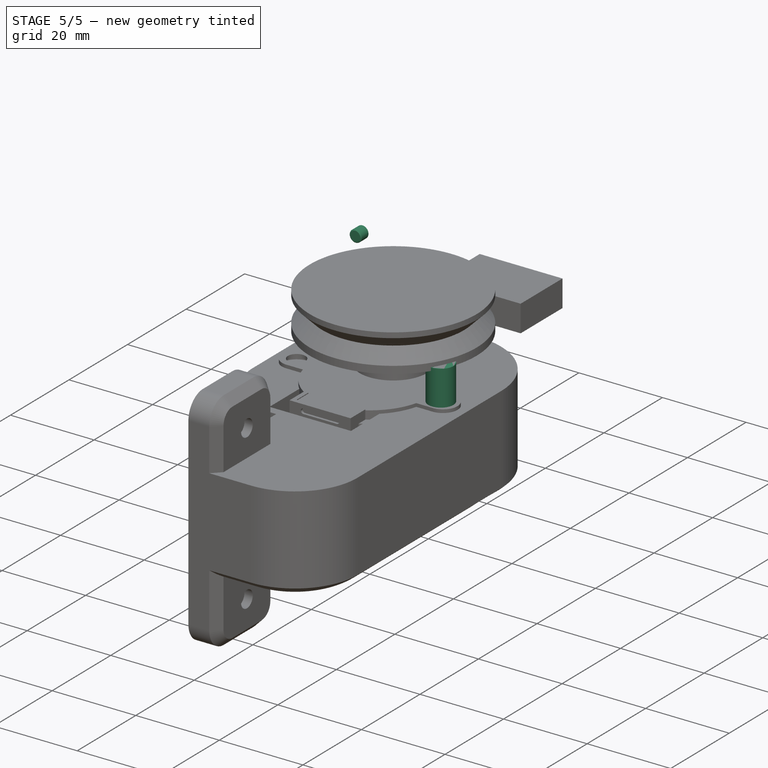
[diagram: stage 5 of 5 — iso view after this stage's code; geometry added in this stage tinted green]
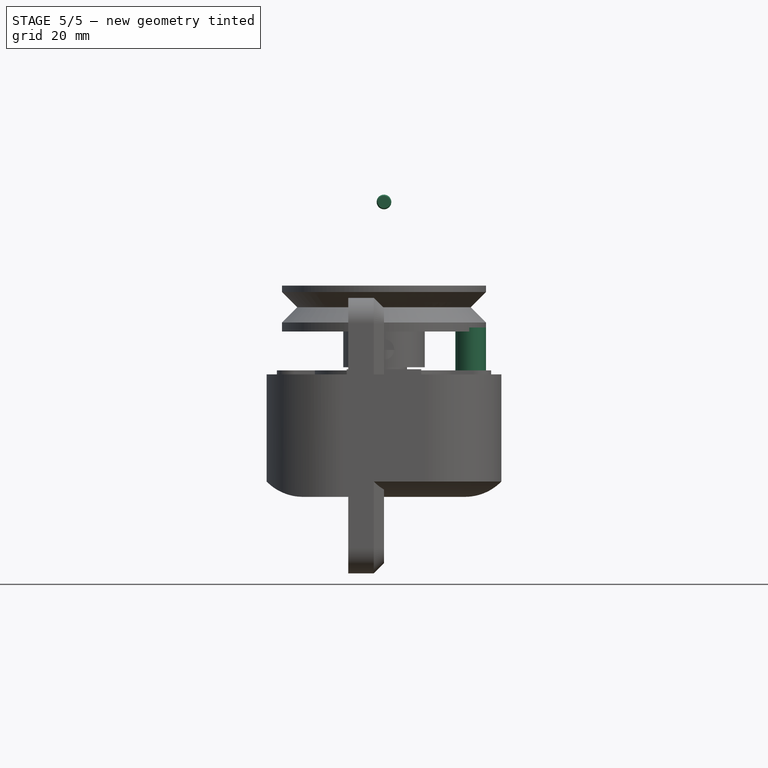
[diagram: stage 5 of 5 — front view after this stage's code; geometry added in this stage tinted green]
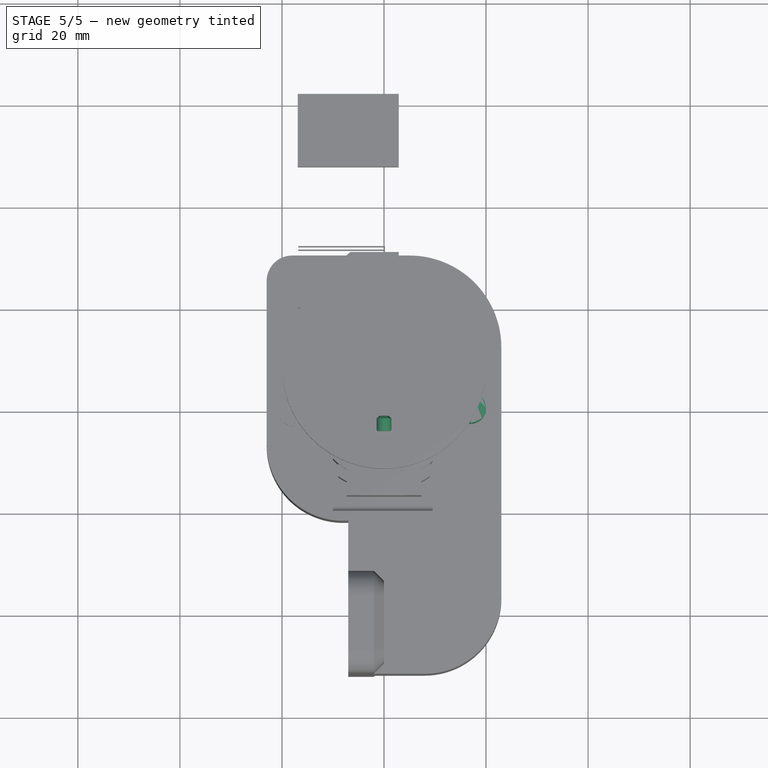
[diagram: stage 5 of 5 — top view after this stage's code; geometry added in this stage tinted green]
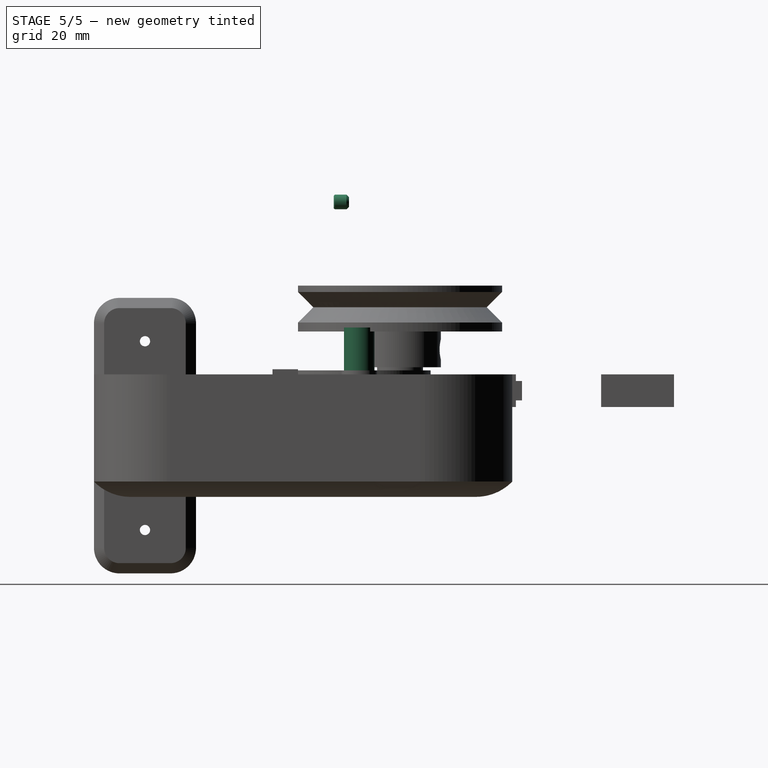
[diagram: stage 5 of 5 — right view after this stage's code; geometry added in this stage tinted green]
FEATURE [Part::Cylinder] Cylinder  label="Principal_body"
  Angle = 360
  AttacherType = Attacher::AttachEngine3D
  Height = 19
  Radius = 14
FEATURE [Sketcher::SketchObject] Sketch
  MapMode = 5
  Placement = pos=(0,0,18.2) rot=(0,0,1;0rad)
  sketch-geometry (6):
    g0: ArcOfCircle CenterX=-17.5 CenterY=0 CenterZ=0 NormalX=0 NormalY=0 NormalZ=1 AngleXU=0 Radius=3.5 StartAngle=1.5708 EndAngle=4.71239
    g1: ArcOfCircle CenterX=17.5 CenterY=0 CenterZ=0 NormalX=0 NormalY=0 NormalZ=1 AngleXU=0 Radius=3.5 StartAngle=4.71239 EndAngle=7.85398
    g2: LineSegment StartX=-17.5 StartY=-3.5 StartZ=0 EndX=17.5 EndY=-3.5 EndZ=0
    g3: LineSegment StartX=-17.5 StartY=3.5 StartZ=0 EndX=17.5 EndY=3.5 EndZ=0
    g4: Circle CenterX=-17.5 CenterY=0 CenterZ=0 NormalX=0 NormalY=0 NormalZ=1 AngleXU=0 Radius=2.1
    g5: Circle CenterX=17.5 CenterY=0 CenterZ=0 NormalX=0 NormalY=0 NormalZ=1 AngleXU=0 Radius=2.1
  constraints (14):
    c: Tangent(g0,g3) = 1.5708
    c: Tangent(g0,g2) = -1.5708
    c: Tangent(g2,g1) = -1.5708
    c: Tangent(g3,g1) = 1.5708
    c: Horizontal(g2)
    c: Equal(g0,g1)
    c: Symmetric(g0,g1,g-2)
    c: PointOnObject(g0,g-1)
    c: Coincident(g4,g0)
    c: Coincident(g5,g1)
    c: Radius(g4) = 2.1
    c: Radius(g0) = 3.5
    c: Equal(g4,g5)
    c: DistanceX(g0,g1) = 35
FEATURE [PartDesign::Pad] Pad
  Length = 0.8
  Length2 = 100
  Placement = pos=(0,0,18.2) rot=(0,0,1;0rad)
  Profile = -> Sketch
  Type = 0
FEATURE [Part::Fuse] Fusion
  Base = -> Cylinder
  Tool = -> Pad
FEATURE [Part::Cylinder] Cylinder001  label="Cilindro"
  Angle = 360
  AttacherType = Attacher::AttachEngine3D
  Height = 1.5
  Placement = pos=(0,8,19) rot=(0,0,1;0rad)
  Radius = 4.5
FEATURE [Part::Cylinder] Cylinder002  label="Axis1"
  Angle = 360
  AttacherType = Attacher::AttachEngine3D
  Height = 10
  Radius = 2.5
FEATURE [Part::Box] Box  label="Cubo"
  AttacherType = Attacher::AttachEngine3D
  Height = 6
  Length = 1
  Placement = pos=(2.5,1.5,4) rot=(0,0,1;1.5708rad)
  Width = 5
FEATURE [Part::Box] Box001  label="Cubo001"
  AttacherType = Attacher::AttachEngine3D
  Height = 6
  Length = 1
  Placement = pos=(2.5,-2.5,4) rot=(0,0,1;1.5708rad)
  Width = 5
FEATURE [Part::Fuse] Fusion001
  Base = -> Box
  Tool = -> Box001
FEATURE [Part::Cut] Cut  label="Axis final"
  Base = -> Cylinder002
  Placement = pos=(0,8,19) rot=(0,0,1;0rad)
  Tool = -> Fusion001
FEATURE [Part::Fuse] Fusion002  label="Cilindric_Body"
  Base = -> Fusion
  Tool = -> Cylinder001
FEATURE [Part::Box] Box002  label="Cubo002"
  AttacherType = Attacher::AttachEngine3D
  Height = 1
  Length = 12.6
  Placement = pos=(-6.3,-16,18) rot=(0,0,1;0rad)
  Width = 10
FEATURE [Part::Fuse] Fusion003  label="Body"
  Base = -> Fusion002
  Tool = -> Box002
FEATURE [Part::Box] Box003  label="Cubo003"
  AttacherType = Attacher::AttachEngine3D
  Height = 16.2
  Length = 14.6
  Placement = pos=(-7.3,-17,3) rot=(0,0,1;0rad)
  Width = 5
FEATURE [Part::Cut] Cut001  label="Plastic_base"
  Base = -> Box003
  Tool = -> Fusion003
FEATURE [Part::Cylinder] Cylinder003  label="Cilindro001"
  Angle = 80
  AttacherType = Attacher::AttachEngine3D
  Height = 14
  Placement = pos=(0,0,3) rot=(0,0,1;4.01426rad)
  Radius = 16
FEATURE [Part::Cut] Cut002
  Base = -> Cylinder003
  Tool = -> Fusion003
FEATURE [Part::Box] Box004  label="Cubo004"
  AttacherType = Attacher::AttachEngine3D
  Height = 20
  Length = 3
  Placement = pos=(9,-15,0) rot=(0,0,1;0rad)
  Width = 6
FEATURE [Part::Box] Box005  label="Cubo005"
  AttacherType = Attacher::AttachEngine3D
  Height = 20
  Length = 3
  Placement = pos=(-12,-15,0) rot=(0,0,1;0rad)
  Width = 6
FEATURE [Part::Fuse] Fusion004  label="Arco_plastico"
  Base = -> Box004
  Tool = -> Box005
FEATURE [Part::Cut] Cut003
  Base = -> Cut002
  Tool = -> Fusion004
FEATURE [Part::Fuse] Fusion005  label="Plastic_base_complete"
  Base = -> Cut001
  Tool = -> Cut003
FEATURE [App::DocumentObjectGroup] Grupo  label="Axis"
  Group = -> [Cut]
FEATURE [Part::Box] Box006  label="Cubo006"
  AttacherType = Attacher::AttachEngine3D
  Height = 2
  Length = 12.6
  Placement = pos=(-6.3,-16,16) rot=(0,0,1;0rad)
  Width = 10
FEATURE [Part::Cut] Cut004  label="Plastic_base sin vaciado"
  Base = -> Fusion005
  Tool = -> Box006
FEATURE [Sketcher::SketchObject] Sketch001
  ExternalGeometry = -> [Cut004]
  MapMode = 5
  Placement = pos=(0,-17,0) rot=(1,0,0;1.5708rad)
  Support = -> [Cut004]
  sketch-geometry (4):
    g0: ArcOfCircle CenterX=-4 CenterY=17.7 CenterZ=0 NormalX=0 NormalY=0 NormalZ=1 AngleXU=0 Radius=0.6 StartAngle=1.5708 EndAngle=4.71239
    g1: ArcOfCircle CenterX=4 CenterY=17.7 CenterZ=0 NormalX=0 NormalY=0 NormalZ=1 AngleXU=0 Radius=0.6 StartAngle=4.71239 EndAngle=7.85398
    g2: LineSegment StartX=-4 StartY=17.1 StartZ=0 EndX=4 EndY=17.1 EndZ=0
    g3: LineSegment StartX=-4 StartY=18.3 StartZ=0 EndX=4 EndY=18.3 EndZ=0
  constraints (10):
    c: Tangent(g0,g3) = 1.5708
    c: Tangent(g0,g2) = -1.5708
    c: Tangent(g2,g1) = -1.5708
    c: Tangent(g3,g1) = 1.5708
    c: Horizontal(g2)
    c: Equal(g0,g1)
    c: Symmetric(g0,g1,g-2)
    c: DistanceY(g1,g1) = -1.2
    c: DistanceX(g0,g1) = 8
    c: DistanceY(g-3,g0) = -1.5
FEATURE [PartDesign::Pocket] Pocket  label="Plastic_base_vaciado"
  Length = 0.6
  Length2 = 100
  Profile = -> Sketch001
  Type = 0
FEATURE [Sketcher::SketchObject] Sketch002
  ExternalGeometry = -> [Pocket]
  MapMode = 5
  Placement = pos=(-9,0,0) rot=(0.57735,-0.57735,-0.57735;2.0944rad)
  Support = -> [Pocket]
  sketch-geometry (4):
    g0: ArcOfCircle CenterX=0 CenterY=0 CenterZ=0 NormalX=0 NormalY=0 NormalZ=1 AngleXU=0 Radius=14.6 StartAngle=0.906585 EndAngle=2.23501
    g1: LineSegment StartX=-9 StartY=11.4961 StartZ=0 EndX=-9 EndY=10.7238 EndZ=0
    g2: LineSegment StartX=9 StartY=11.4961 StartZ=0 EndX=9 EndY=10.7238 EndZ=0
    g3: ArcOfCircle CenterX=0 CenterY=0 CenterZ=0 NormalX=0 NormalY=0 NormalZ=1 AngleXU=0 Radius=14 StartAngle=0.872574 EndAngle=2.26902
  constraints (9):
    c: PointOnObject(g0,g-2)
    c: Coincident(g0,g-1)
    c: Coincident(g2,g0)
    c: Coincident(g3,g-1)
    c: Coincident(g3,g1)
    c: Coincident(g3,g2)
    c: Radius(g3) = 14
    c: Radius(g0) = 14.6
    c: Coincident(g0,g1)
FEATURE [PartDesign::Pad] Pad001  label="Plastic_base_final"
  Length = 1.5
  Length2 = 100
  Profile = -> Sketch002
  Type = 0
FEATURE [App::DocumentObjectGroup] Grupo001  label="Plastic base + body"
  Group = -> [Cut004,Pocket,Pad001]
FEATURE [Part::Compound] Compound
  Links = -> [Cut,Fusion003,Pad001]
FEATURE [Part::Cylinder] Cylinder007  label="Cylinder003"
  Angle = 360
  AttacherType = Attacher::AttachEngine3D
  Height = 10
  Placement = pos=(17,0,17.4) rot=(0,0,1;0rad)
  Radius = 3
FEATURE [Sketcher::SketchObject] Sketch014
  MapMode = 5
  Placement = pos=(0,-5,52) rot=(1,0,0;1.5708rad)
  sketch-geometry (1):
    g0: Circle CenterX=0 CenterY=0 CenterZ=0 NormalX=0 NormalY=0 NormalZ=1 AngleXU=0 Radius=1.43658
  constraints (1):
    c: Coincident(g0,g-1)
FEATURE [PartDesign::Pad] Pad008
  Length = 3
  Length2 = 100
  Placement = pos=(0,-5,52) rot=(1,0,0;1.5708rad)
  Profile = -> Sketch014
  Reversed = true
  Type = 0
FEATURE [PartDesign::Chamfer] Chamfer003
  Base = -> Pad008 [Edge3]
  Placement = pos=(0,-5,52) rot=(1,0,0;1.5708rad)
  Size = 0.5
FEATURE [PartDesign::Chamfer] Chamfer004
  Base = -> Chamfer003 [Edge3]
  Placement = pos=(0,-5,52) rot=(1,0,0;1.5708rad)
  Size = 0.2
FEATURE [Sketcher::SketchObject] Sketch015
  MapMode = 5
  Placement = pos=(0,0,0) rot=(1,0,0;1.5708rad)
  sketch-geometry (8):
    g0: LineSegment StartX=0 StartY=0 StartZ=0 EndX=6.5 EndY=0 EndZ=0
    g1: LineSegment StartX=6.5 StartY=0 StartZ=0 EndX=6.5 EndY=7 EndZ=0
    g2: LineSegment StartX=4.7 StartY=14 StartZ=0 EndX=4.7 EndY=7 EndZ=0
    g3: LineSegment StartX=4.7 StartY=7 StartZ=0 EndX=6.5 EndY=7 EndZ=0
    g4: LineSegment StartX=0 StartY=15 StartZ=0 EndX=6.5 EndY=15 EndZ=0
    g5: LineSegment StartX=6.5 StartY=15 StartZ=0 EndX=6.5 EndY=14 EndZ=0
    g6: LineSegment StartX=6.5 StartY=14 StartZ=0 EndX=4.7 EndY=14 EndZ=0
    g7: LineSegment StartX=0 StartY=15 StartZ=0 EndX=0 EndY=0 EndZ=0
  constraints (15):
    c: PointOnObject(g0,g-1)
    c: Horizontal(g0)
    c: Coincident(g1,g0)
    c: Vertical(g1)
    c: Vertical(g2)
    c: Coincident(g3,g2)
    c: Coincident(g3,g1)
    c: Horizontal(g4)
    c: Coincident(g4,g5)
    c: Vertical(g5)
    c: Coincident(g5,g6)
    c: Horizontal(g6)
    c: Vertical(g7)
    c: PointOnObject(g7,g4)
    c: Coincident(g4,g7)
FEATURE [PartDesign::Revolution] Revolution
  Angle = 360
  Axis = (0,0,1)
  Base = (0,0,0)
  Placement = pos=(0,0,0) rot=(1,0,0;1.5708rad)
  Profile = -> Sketch015
  ReferenceAxis = -> Sketch015 [V_Axis]
  Reversed = true
FEATURE [Sketcher::SketchObject] Sketch016
  MapMode = 5
  Placement = pos=(0,0,15) rot=(0,0,1;3.14159rad)
  Support = -> [Revolution]
  sketch-geometry (1):
    g0: Circle CenterX=0 CenterY=0 CenterZ=0 NormalX=0 NormalY=0 NormalZ=1 AngleXU=0 Radius=2.5
  constraints (2):
    c: Coincident(g0,g-1)
    c: Radius(g0) = 2.5
FEATURE [PartDesign::Pocket] Pocket001
  Length = 15
  Length2 = 100
  Placement = pos=(0,0,0) rot=(1,0,0;1.5708rad)
  Profile = -> Sketch016
  Type = 0
FEATURE [Sketcher::SketchObject] Sketch017
  MapMode = 5
  Placement = pos=(0,-7,3.5) rot=(1,0,0;1.5708rad)
  sketch-geometry (1):
    g0: Circle CenterX=0 CenterY=0 CenterZ=0 NormalX=0 NormalY=0 NormalZ=1 AngleXU=0 Radius=1.5
  constraints (2):
    c: Coincident(g0,g-1)
    c: Radius(g0) = 1.5
FEATURE [PartDesign::Pad] Pad009
  Length = 8
  Length2 = 100
  Placement = pos=(0,-7,3.5) rot=(1,0,0;1.5708rad)
  Profile = -> Sketch017
  Reversed = true
  Type = 0
FEATURE [Part::Cut] Cut013
  Base = -> Pocket001
  Tool = -> Pad009
FEATURE [Sketcher::SketchObject] Sketch003
  MapMode = 5
  Placement = pos=(7,0,3.5) rot=(0.57735,0.57735,0.57735;2.0944rad)
  sketch-geometry (1):
    g0: Circle CenterX=0 CenterY=0 CenterZ=0 NormalX=0 NormalY=0 NormalZ=1 AngleXU=0 Radius=1.5
  constraints (2):
    c: Coincident(g0,g-1)
    c: Radius(g0) = 1.5
FEATURE [PartDesign::Pad] Pad010
  Length = 8
  Length2 = 100
  Placement = pos=(7,0,3.5) rot=(0.57735,0.57735,0.57735;2.0944rad)
  Profile = -> Sketch003
  Reversed = true
  Type = 0
FEATURE [Part::Cut] Cut014
  Base = -> Cut013
  Tool = -> Pad010
FEATURE [PartDesign::Chamfer] Chamfer005
  Base = -> Cut014 [Edge11,Edge10,Edge8,Edge9,Edge4,Edge5]
  Size = 0.5
FEATURE [Part::Cut] Cut015
  Base = -> Cylinder010
  Placement = pos=(0,0,1) rot=(0,0,1;0rad)
  Tool = -> Array
FEATURE [Part::Cylinder] Cylinder013  label="Cilindro006"
  Angle = 360
  AttacherType = Attacher::AttachEngine3D
  Height = 14.6
  Radius = 2.5
FEATURE [Part::MultiFuse] Fusion006
  Shapes = -> [Cut015,Chamfer007,Chamfer008]
FEATURE [Part::Cut] Cut016
  Base = -> Fusion006
  Tool = -> Cylinder013
FEATURE [Part::Cut] Cut017
  Base = -> Cut016
  Tool = -> Cylinder014
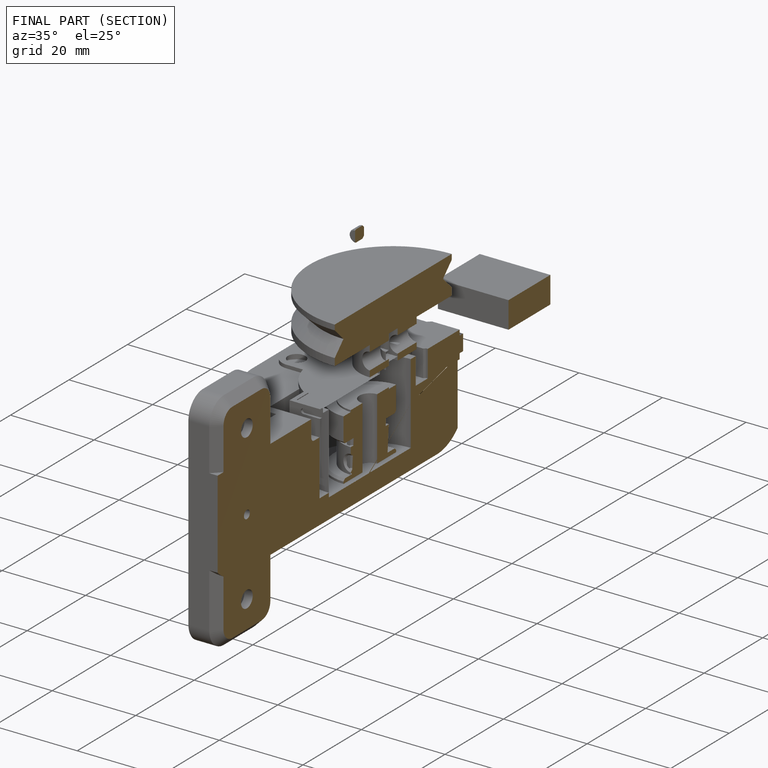
[diagram: finished part — half-section view (interior)]
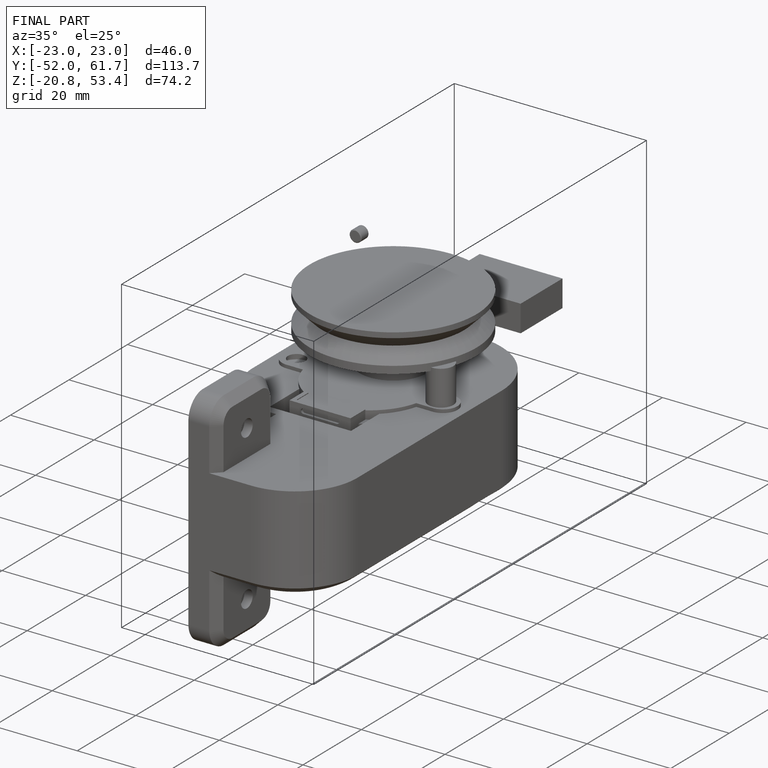
[diagram: finished part — iso view with bounding-box wireframe]
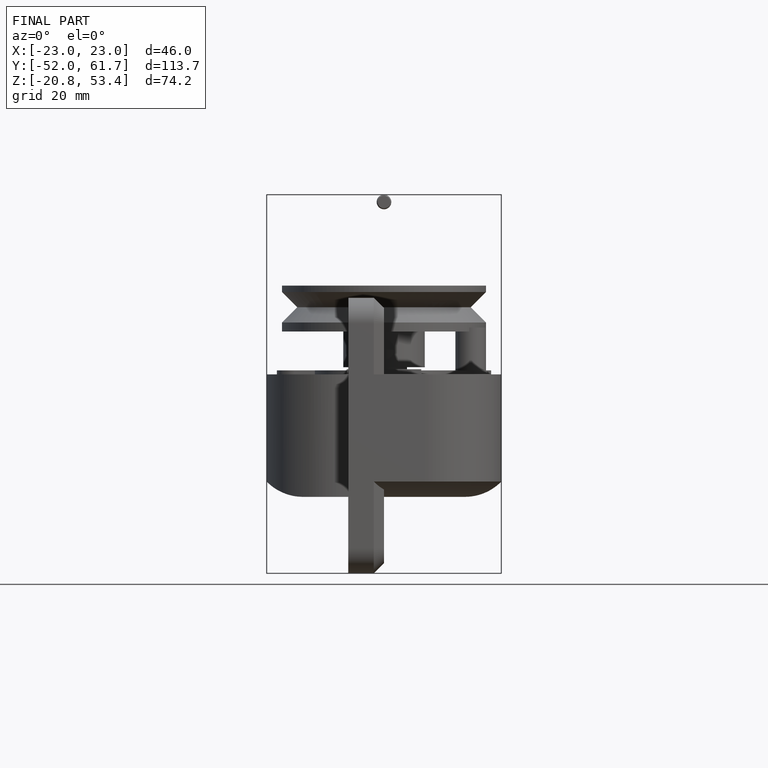
[diagram: finished part — front view with bounding-box wireframe]
